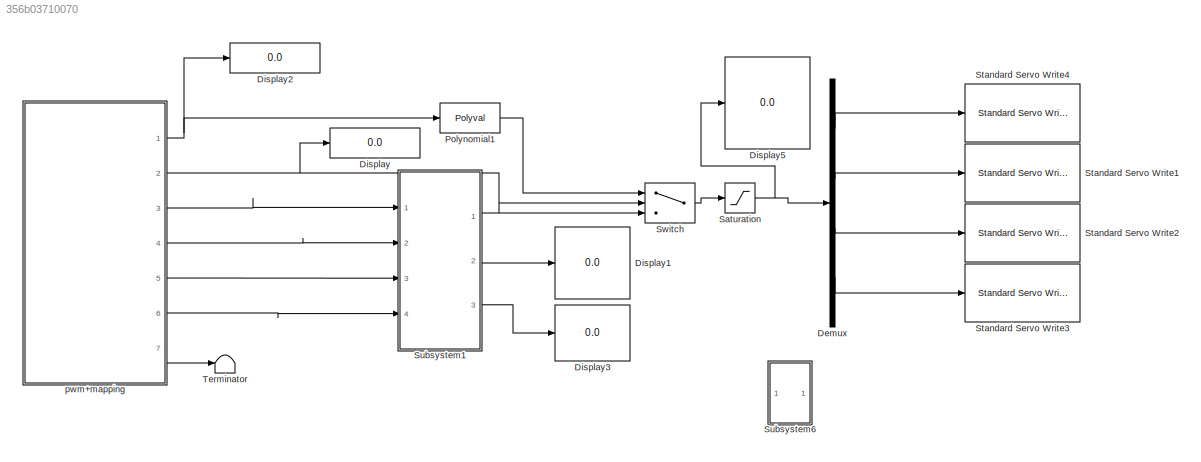
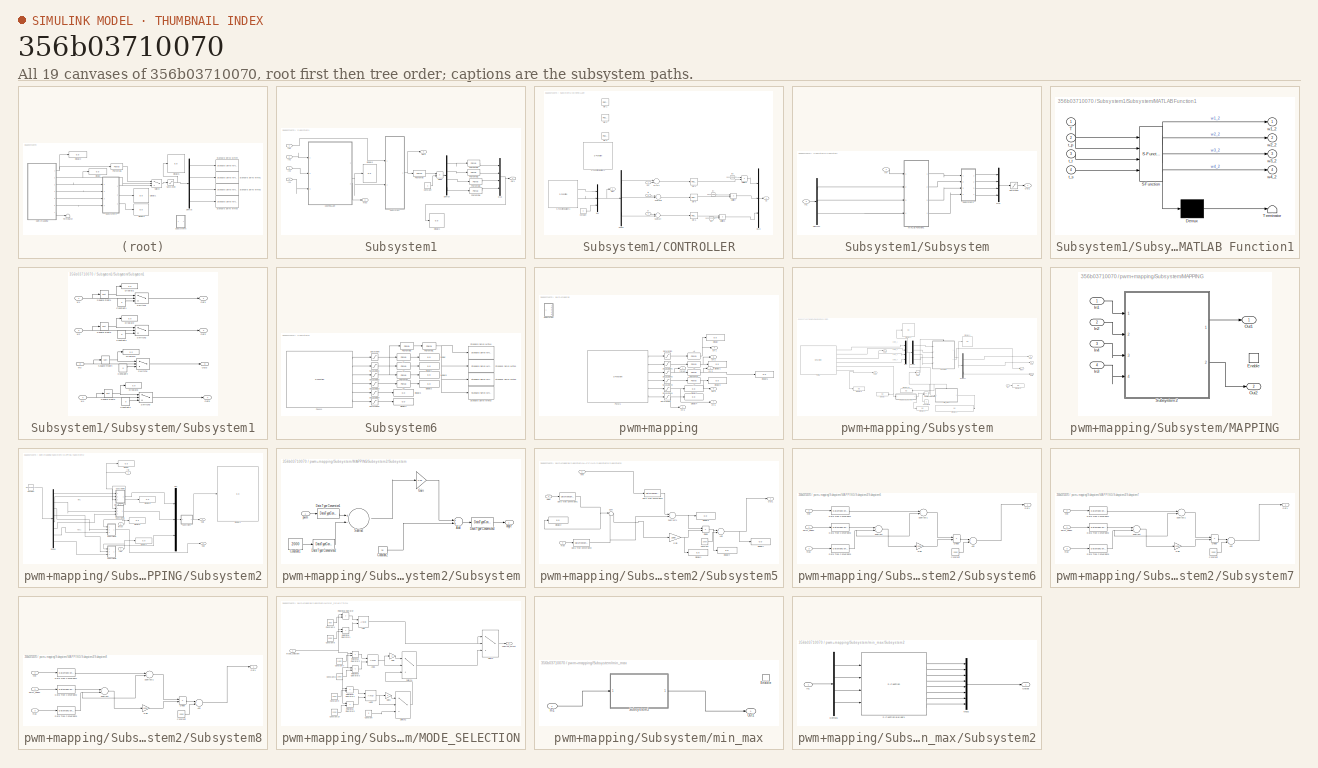
[diagram: thumbnail index - all 19 canvases of the model, root first then tree order]
MODEL slx_356b03710070
KIND model
CONFIG AbsTol = auto
CONFIG EnableMultiTasking = on
CONFIG FixedStep = auto
CONFIG MaxStep = auto
CONFIG MinStep = auto
CONFIG RelTol = 1e-3
CONFIG SampleTimeConstraint = Unconstrained
CONFIG Solver = FixedStepAuto
CONFIG SolverName = FixedStepAuto
CONFIG StartTime = 0.0
CONFIG StopTime = inf
BLOCK [Demux] Demux
  DisplayOption = bar
  Ports = [1, 4]
BLOCK [Display] Display
  Decimation = 1
  Ports = [1]
BLOCK [Display] Display1
  Decimation = 1
  Ports = [1]
BLOCK [Display] Display2
  Decimation = 1
  Ports = [1]
BLOCK [Display] Display3
  Decimation = 1
  Ports = [1]
BLOCK [Display] Display5
  Decimation = 1
  Ports = [1]
BLOCK [Polyval] Polynomial1
  Coefs = [0.097\n  -52]
BLOCK [Saturate] Saturation
  InputPortMap = u0
  LowerLimit = 45
  Ports = [1, 1]
  UpperLimit = 142
BLOCK [Reference] Standard Servo Write1  REF=arduinolib/Standard Servo Write
  Ports = [1]
  SourceBlock = arduinolib/Standard Servo Write
  SourceProductBaseCode = ARDUINO
  SourceProductName = Simulink Support Package for Arduino Hardware
  SourceType = Arduino Standard Servo Write
BLOCK [Reference] Standard Servo Write2  REF=arduinolib/Standard Servo Write
  Ports = [1]
  SourceBlock = arduinolib/Standard Servo Write
  SourceProductBaseCode = ARDUINO
  SourceProductName = Simulink Support Package for Arduino Hardware
  SourceType = Arduino Standard Servo Write
BLOCK [Reference] Standard Servo Write3  REF=arduinolib/Standard Servo Write
  Ports = [1]
  SourceBlock = arduinolib/Standard Servo Write
  SourceProductBaseCode = ARDUINO
  SourceProductName = Simulink Support Package for Arduino Hardware
  SourceType = Arduino Standard Servo Write
BLOCK [Reference] Standard Servo Write4  REF=arduinolib/Standard Servo Write
  Ports = [1]
  SourceBlock = arduinolib/Standard Servo Write
  SourceProductBaseCode = ARDUINO
  SourceProductName = Simulink Support Package for Arduino Hardware
  SourceType = Arduino Standard Servo Write
BLOCK [SubSystem] Subsystem1
  Ports = [4, 3]
  RequestExecContextInheritance = off
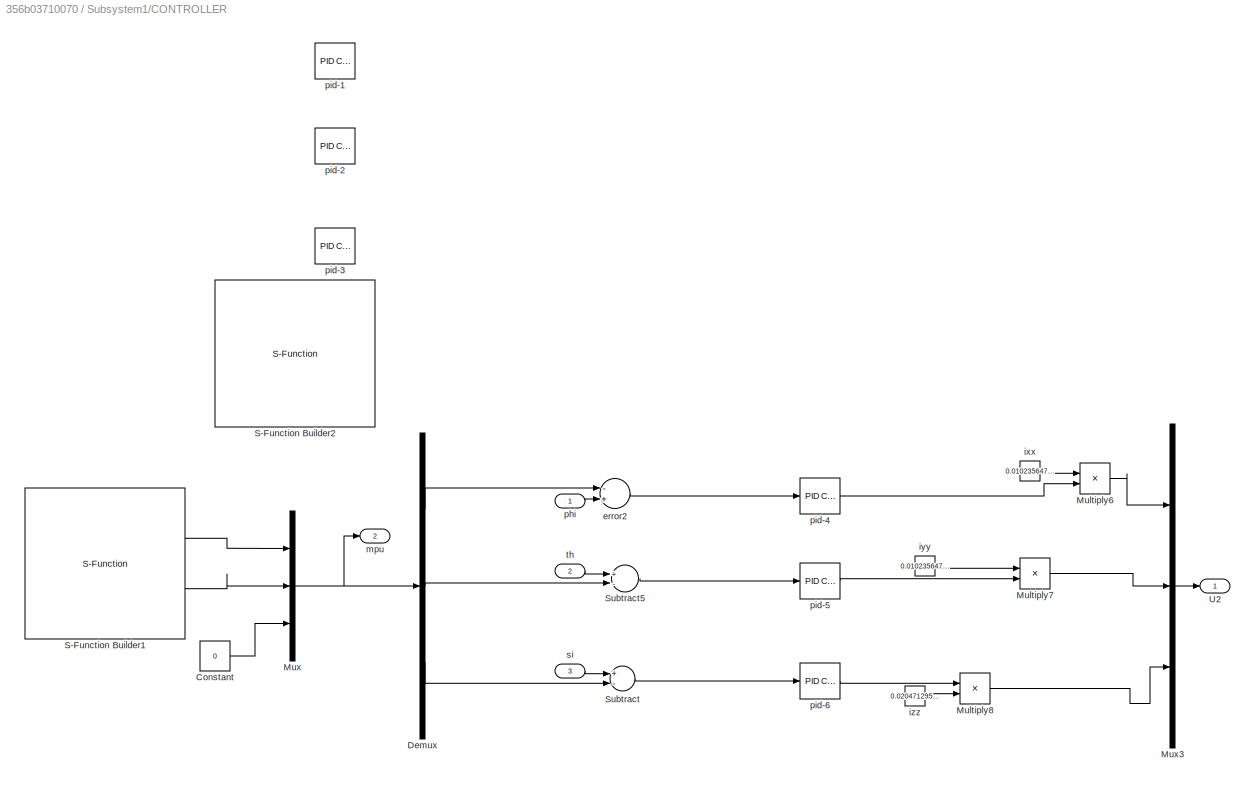
BLOCK [SubSystem] Subsystem1/CONTROLLER
  Ports = [3, 2]
  RequestExecContextInheritance = off
BLOCK [Constant] Subsystem1/CONTROLLER/Constant
  Value = 0
BLOCK [Demux] Subsystem1/CONTROLLER/Demux
  DisplayOption = bar
  Outputs = 3
  Ports = [1, 3]
BLOCK [Product] Subsystem1/CONTROLLER/Multiply6
  InputSameDT = off
  OutDataTypeStr = double
  Ports = [2, 1]
  RndMeth = Floor
  SaturateOnIntegerOverflow = off
BLOCK [Product] Subsystem1/CONTROLLER/Multiply7
  InputSameDT = off
  OutDataTypeStr = double
  Ports = [2, 1]
  RndMeth = Floor
  SaturateOnIntegerOverflow = off
BLOCK [Product] Subsystem1/CONTROLLER/Multiply8
  InputSameDT = off
  OutDataTypeStr = double
  Ports = [2, 1]
  RndMeth = Floor
  SaturateOnIntegerOverflow = off
BLOCK [Mux] Subsystem1/CONTROLLER/Mux
  DisplayOption = bar
  Inputs = 3
  Ports = [3, 1]
BLOCK [Mux] Subsystem1/CONTROLLER/Mux3
  DisplayOption = bar
  Inputs = 3
  Ports = [3, 1]
BLOCK [S-Function] Subsystem1/CONTROLLER/S-Function Builder1
  CopyFcn = set_param(gcbh,'LinkStatus','none')
  EnableBusSupport = off
  FunctionName = mpu_raw
  InitFcn = try, set_param(gcb,'FunctionName','mpu_raw'), end
  OpenFcn = sfunctionwizard(gcbh)
  Ports = [0, 2]
  PreSaveFcn = try, set_param(gcb,'FunctionName','mpu_raw'), end
  SFcnIsStateOwnerBlock = off
  SFunctionDeploymentMode = off
  SFunctionModules = mpu_raw_wrapper
BLOCK [S-Function] Subsystem1/CONTROLLER/S-Function Builder2
  Commented = on
  CopyFcn = set_param(gcbh,'LinkStatus','none')
  EnableBusSupport = off
  FunctionName = mpu_raw
  InitFcn = try, set_param(gcb,'FunctionName','mpu_raw'), end
  OpenFcn = sfunctionwizard(gcbh)
  Ports = [0, 2]
  PreSaveFcn = try, set_param(gcb,'FunctionName','mpu_raw'), end
  SFcnIsStateOwnerBlock = off
  SFunctionDeploymentMode = off
  SFunctionModules = mpu_raw_wrapper
BLOCK [Sum] Subsystem1/CONTROLLER/Subtract
  InputSameDT = off
  Inputs = +-
  OutDataTypeStr = Inherit: Inherit via internal rule
  Ports = [2, 1]
  SaturateOnIntegerOverflow = off
BLOCK [Sum] Subsystem1/CONTROLLER/Subtract5
  InputSameDT = off
  Inputs = +-
  OutDataTypeStr = Inherit: Inherit via internal rule
  Ports = [2, 1]
  SaturateOnIntegerOverflow = off
BLOCK [Outport] Subsystem1/CONTROLLER/U2
  IconDisplay = Port number
BLOCK [Sum] Subsystem1/CONTROLLER/error2
  InputSameDT = off
  Inputs = -+
  OutDataTypeStr = Inherit: Inherit via internal rule
  Ports = [2, 1]
  SaturateOnIntegerOverflow = off
BLOCK [Constant] Subsystem1/CONTROLLER/ixx
  Value = 0.01023564759
BLOCK [Constant] Subsystem1/CONTROLLER/iyy
  Value = 0.01023564759
BLOCK [Constant] Subsystem1/CONTROLLER/izz
  Value = 0.02047129518
BLOCK [Outport] Subsystem1/CONTROLLER/mpu
  IconDisplay = Port number
  Port = 2
BLOCK [Inport] Subsystem1/CONTROLLER/phi
  IconDisplay = Port number
BLOCK [Reference] Subsystem1/CONTROLLER/pid-1  REF=simulink/Continuous/PID Controller
  Commented = on
  Ports = [1, 1]
  SourceBlock = simulink/Continuous/PID Controller
  SourceProductBaseCode = SL
  SourceProductName = Simulink
  SourceType = PID 1dof
BLOCK [Reference] Subsystem1/CONTROLLER/pid-2  REF=simulink/Continuous/PID Controller
  Commented = on
  Ports = [1, 1]
  SourceBlock = simulink/Continuous/PID Controller
  SourceProductBaseCode = SL
  SourceProductName = Simulink
  SourceType = PID 1dof
BLOCK [Reference] Subsystem1/CONTROLLER/pid-3  REF=simulink/Continuous/PID Controller
  Commented = on
  Ports = [1, 1]
  SourceBlock = simulink/Continuous/PID Controller
  SourceProductBaseCode = SL
  SourceProductName = Simulink
  SourceType = PID 1dof
BLOCK [Reference] Subsystem1/CONTROLLER/pid-4  REF=simulink/Continuous/PID Controller
  Ports = [1, 1]
  SourceBlock = simulink/Continuous/PID Controller
  SourceProductBaseCode = SL
  SourceProductName = Simulink
  SourceType = PID 1dof
BLOCK [Reference] Subsystem1/CONTROLLER/pid-5  REF=simulink/Continuous/PID Controller
  Ports = [1, 1]
  SourceBlock = simulink/Continuous/PID Controller
  SourceProductBaseCode = SL
  SourceProductName = Simulink
  SourceType = PID 1dof
BLOCK [Reference] Subsystem1/CONTROLLER/pid-6  REF=simulink/Continuous/PID Controller
  Ports = [1, 1]
  SourceBlock = simulink/Continuous/PID Controller
  SourceProductBaseCode = SL
  SourceProductName = Simulink
  SourceType = PID 1dof
BLOCK [Inport] Subsystem1/CONTROLLER/si
  IconDisplay = Port number
  Port = 3
BLOCK [Inport] Subsystem1/CONTROLLER/th
  IconDisplay = Port number
  Port = 2
BLOCK [Constant] Subsystem1/Constant
BLOCK [Demux] Subsystem1/Demux
  DisplayOption = bar
  Ports = [1, 4]
BLOCK [Display] Subsystem1/Display1
  Decimation = 1
  Ports = [1]
BLOCK [Display] Subsystem1/Display6
  Decimation = 1
  Ports = [1]
BLOCK [Product] Subsystem1/Divide
  InputSameDT = off
  Inputs = */
  OutDataTypeStr = Inherit: Inherit via internal rule
  Ports = [2, 1]
  RndMeth = Floor
  SaturateOnIntegerOverflow = off
BLOCK [Inport] Subsystem1/In1
  IconDisplay = Port number
BLOCK [Inport] Subsystem1/In2
  IconDisplay = Port number
  Port = 2
BLOCK [Inport] Subsystem1/In3
  IconDisplay = Port number
  Port = 3
BLOCK [Inport] Subsystem1/In4
  IconDisplay = Port number
  Port = 4
BLOCK [Mux] Subsystem1/Mux
  DisplayOption = bar
  Ports = [4, 1]
BLOCK [Outport] Subsystem1/Out1
  IconDisplay = Port number
BLOCK [Outport] Subsystem1/Out2
  IconDisplay = Port number
  Port = 2
BLOCK [Polyval] Subsystem1/Polynomial
  Coefs = [1.126e-05 0.05526 1005]
BLOCK [Polyval] Subsystem1/Polynomial1
  Coefs = [0.097\n  -52]
BLOCK [Polyval] Subsystem1/Polynomial2
  Coefs = [0.097\n  -52]
BLOCK [Polyval] Subsystem1/Polynomial3
  Coefs = [0.097\n  -52]
BLOCK [Polyval] Subsystem1/Polynomial4
  Coefs = [0.097\n  -52]
BLOCK [SubSystem] Subsystem1/Subsystem
  Ports = [2, 1]
  RequestExecContextInheritance = off
BLOCK [Demux] Subsystem1/Subsystem/Demux1
  DisplayOption = bar
  Outputs = 3
  Ports = [1, 3]
BLOCK [Inport] Subsystem1/Subsystem/In1
  IconDisplay = Port number
  Port = 2
BLOCK [Inport] Subsystem1/Subsystem/In7
  IconDisplay = Port number
BLOCK [SubSystem] Subsystem1/Subsystem/MATLAB Function1
  ErrorFcn = Stateflow.Translate.translate
  PermitHierarchicalResolution = ExplicitOnly
  Ports = [4, 4]
  RequestExecContextInheritance = off
  SFBlockType = MATLAB Function
  TreatAsAtomicUnit = on
BLOCK [Demux] Subsystem1/Subsystem/MATLAB Function1/ Demux 
  Outputs = 1
  Ports = [1, 1]
BLOCK [S-Function] Subsystem1/Subsystem/MATLAB Function1/ SFunction 
  EnableBusSupport = on
  FunctionName = sf_sfun
  PortCounts = [4 5]
  Ports = [4, 5]
  SFcnIsStateOwnerBlock = off
  SFunctionDeploymentMode = off
  Tag = Stateflow S-Function QC_Test2 2
BLOCK [Terminator] Subsystem1/Subsystem/MATLAB Function1/ Terminator 
BLOCK [Inport] Subsystem1/Subsystem/MATLAB Function1/T
  IconDisplay = Port number
BLOCK [Inport] Subsystem1/Subsystem/MATLAB Function1/t_p
  IconDisplay = Port number
  Port = 2
BLOCK [Inport] Subsystem1/Subsystem/MATLAB Function1/t_s
  IconDisplay = Port number
  Port = 4
BLOCK [Inport] Subsystem1/Subsystem/MATLAB Function1/t_t
  IconDisplay = Port number
  Port = 3
BLOCK [Outport] Subsystem1/Subsystem/MATLAB Function1/w1_2
  IconDisplay = Port number
BLOCK [Outport] Subsystem1/Subsystem/MATLAB Function1/w2_2
  IconDisplay = Port number
  Port = 2
BLOCK [Outport] Subsystem1/Subsystem/MATLAB Function1/w3_2
  IconDisplay = Port number
  Port = 3
BLOCK [Outport] Subsystem1/Subsystem/MATLAB Function1/w4_2
  IconDisplay = Port number
  Port = 4
BLOCK [Mux] Subsystem1/Subsystem/Mux
  DisplayOption = bar
  Ports = [4, 1]
BLOCK [Outport] Subsystem1/Subsystem/Out1
  IconDisplay = Port number
BLOCK [Saturate] Subsystem1/Subsystem/Saturation
  InputPortMap = u0
  LowerLimit = 0
  Ports = [1, 1]
  UpperLimit = 7300
BLOCK [SubSystem] Subsystem1/Subsystem/Subsystem1
  Ports = [4, 4]
  RequestExecContextInheritance = off
BLOCK [Constant] Subsystem1/Subsystem/Subsystem1/Constant1
  Value = 0
BLOCK [Constant] Subsystem1/Subsystem/Subsystem1/Constant2
  Value = 0
BLOCK [Constant] Subsystem1/Subsystem/Subsystem1/Constant3
  Value = 0
BLOCK [Constant] Subsystem1/Subsystem/Subsystem1/Constant4
  Value = 0
BLOCK [Display] Subsystem1/Subsystem/Subsystem1/Display1
  Decimation = 1
  Ports = [1]
BLOCK [Display] Subsystem1/Subsystem/Subsystem1/Display2
  Decimation = 1
  Ports = [1]
BLOCK [Display] Subsystem1/Subsystem/Subsystem1/Display3
  Decimation = 1
  Ports = [1]
BLOCK [Display] Subsystem1/Subsystem/Subsystem1/Display6
  Decimation = 1
  Ports = [1]
BLOCK [Outport] Subsystem1/Subsystem/Subsystem1/Out1
  IconDisplay = Port number
BLOCK [Outport] Subsystem1/Subsystem/Subsystem1/Out2
  IconDisplay = Port number
  Port = 2
BLOCK [Outport] Subsystem1/Subsystem/Subsystem1/Out3
  IconDisplay = Port number
  Port = 3
BLOCK [Outport] Subsystem1/Subsystem/Subsystem1/Out5
  IconDisplay = Port number
  Port = 4
BLOCK [Sqrt] Subsystem1/Subsystem/Subsystem1/Square Root1
BLOCK [Sqrt] Subsystem1/Subsystem/Subsystem1/Square Root2
BLOCK [Sqrt] Subsystem1/Subsystem/Subsystem1/Square Root3
BLOCK [Sqrt] Subsystem1/Subsystem/Subsystem1/Square Root4
BLOCK [Switch] Subsystem1/Subsystem/Subsystem1/Switch1
  Criteria = u2 > Threshold
  InputSameDT = off
  SaturateOnIntegerOverflow = off
BLOCK [Switch] Subsystem1/Subsystem/Subsystem1/Switch2
  Criteria = u2 > Threshold
  InputSameDT = off
  SaturateOnIntegerOverflow = off
BLOCK [Switch] Subsystem1/Subsystem/Subsystem1/Switch3
  Criteria = u2 > Threshold
  InputSameDT = off
  SaturateOnIntegerOverflow = off
BLOCK [Switch] Subsystem1/Subsystem/Subsystem1/Switch4
  Criteria = u2 > Threshold
  InputSameDT = off
  SaturateOnIntegerOverflow = off
BLOCK [Inport] Subsystem1/Subsystem/Subsystem1/w1
  IconDisplay = Port number
BLOCK [Inport] Subsystem1/Subsystem/Subsystem1/w2
  IconDisplay = Port number
  Port = 2
BLOCK [Inport] Subsystem1/Subsystem/Subsystem1/w3
  IconDisplay = Port number
  Port = 3
BLOCK [Inport] Subsystem1/Subsystem/Subsystem1/w4
  IconDisplay = Port number
  Port = 4
BLOCK [Outport] Subsystem1/mpu
  IconDisplay = Port number
  Port = 3
BLOCK [SubSystem] Subsystem6
  Commented = on
  Ports = []
  RequestExecContextInheritance = off
BLOCK [Polyval] Subsystem6/A1
  Coefs = [0.06  -90]
BLOCK [Polyval] Subsystem6/A2
  Coefs = [0.06  -90]
BLOCK [Polyval] Subsystem6/A3
  Coefs = [0.06  -90]
BLOCK [Display] Subsystem6/Display
  Decimation = 1
  Ports = [1]
BLOCK [Display] Subsystem6/Display1
  Decimation = 1
  Ports = [1]
BLOCK [Display] Subsystem6/Display2
  Decimation = 1
  Ports = [1]
BLOCK [Display] Subsystem6/Display3
  Decimation = 1
  Ports = [1]
BLOCK [Display] Subsystem6/Display4
  Decimation = 1
  Ports = [1]
BLOCK [Display] Subsystem6/Display5
  Decimation = 1
  Ports = [1]
BLOCK [S-Function] Subsystem6/PWM1
  CopyFcn = set_param(gcbh,'LinkStatus','none')
  EnableBusSupport = off
  FunctionName = THEpwm
  InitFcn = try, set_param(gcb,'FunctionName','THEpwm'), end
  OpenFcn = sfunctionwizard(gcbh)
  Ports = [0, 6]
  PreSaveFcn = try, set_param(gcb,'FunctionName','THEpwm'), end
  SFcnIsStateOwnerBlock = off
  SFunctionDeploymentMode = off
  SFunctionModules = THEpwm_wrapper
BLOCK [Polyval] Subsystem6/Polynomial
  Coefs = [0.02  -20]
BLOCK [Polyval] Subsystem6/Polynomial1
  Coefs = [0.097\n  -52]
BLOCK [Polyval] Subsystem6/Polynomial3
  Coefs = [1.126e-05 0.05526 1005]
BLOCK [Saturate] Subsystem6/Saturation
  InputPortMap = u0
  LowerLimit = 1000
  Ports = [1, 1]
  UpperLimit = 2000
BLOCK [Saturate] Subsystem6/Saturation1
  InputPortMap = u0
  LowerLimit = 1000
  Ports = [1, 1]
  UpperLimit = 2000
BLOCK [Saturate] Subsystem6/Saturation2
  InputPortMap = u0
  LowerLimit = 1000
  Ports = [1, 1]
  UpperLimit = 2000
BLOCK [Saturate] Subsystem6/Saturation3
  InputPortMap = u0
  LowerLimit = 1000
  Ports = [1, 1]
  UpperLimit = 2000
BLOCK [Saturate] Subsystem6/Saturation4
  InputPortMap = u0
  LowerLimit = 1000
  Ports = [1, 1]
  UpperLimit = 2000
BLOCK [Saturate] Subsystem6/Saturation5
  InputPortMap = u0
  LowerLimit = 1000
  Ports = [1, 1]
  UpperLimit = 2000
BLOCK [Reference] Subsystem6/Standard Servo Write1  REF=arduinolib/Standard Servo Write
  Ports = [1]
  SourceBlock = arduinolib/Standard Servo Write
  SourceProductBaseCode = ARDUINO
  SourceProductName = Simulink Support Package for Arduino Hardware
  SourceType = Arduino Standard Servo Write
BLOCK [Reference] Subsystem6/Standard Servo Write2  REF=arduinolib/Standard Servo Write
  Ports = [1]
  SourceBlock = arduinolib/Standard Servo Write
  SourceProductBaseCode = ARDUINO
  SourceProductName = Simulink Support Package for Arduino Hardware
  SourceType = Arduino Standard Servo Write
BLOCK [Reference] Subsystem6/Standard Servo Write3  REF=arduinolib/Standard Servo Write
  Ports = [1]
  SourceBlock = arduinolib/Standard Servo Write
  SourceProductBaseCode = ARDUINO
  SourceProductName = Simulink Support Package for Arduino Hardware
  SourceType = Arduino Standard Servo Write
BLOCK [Reference] Subsystem6/Standard Servo Write4  REF=arduinolib/Standard Servo Write
  Ports = [1]
  SourceBlock = arduinolib/Standard Servo Write
  SourceProductBaseCode = ARDUINO
  SourceProductName = Simulink Support Package for Arduino Hardware
  SourceType = Arduino Standard Servo Write
BLOCK [Switch] Switch
  Criteria = u2 > Threshold
  InputSameDT = off
  SaturateOnIntegerOverflow = off
  Threshold = 1500
BLOCK [Terminator] Terminator
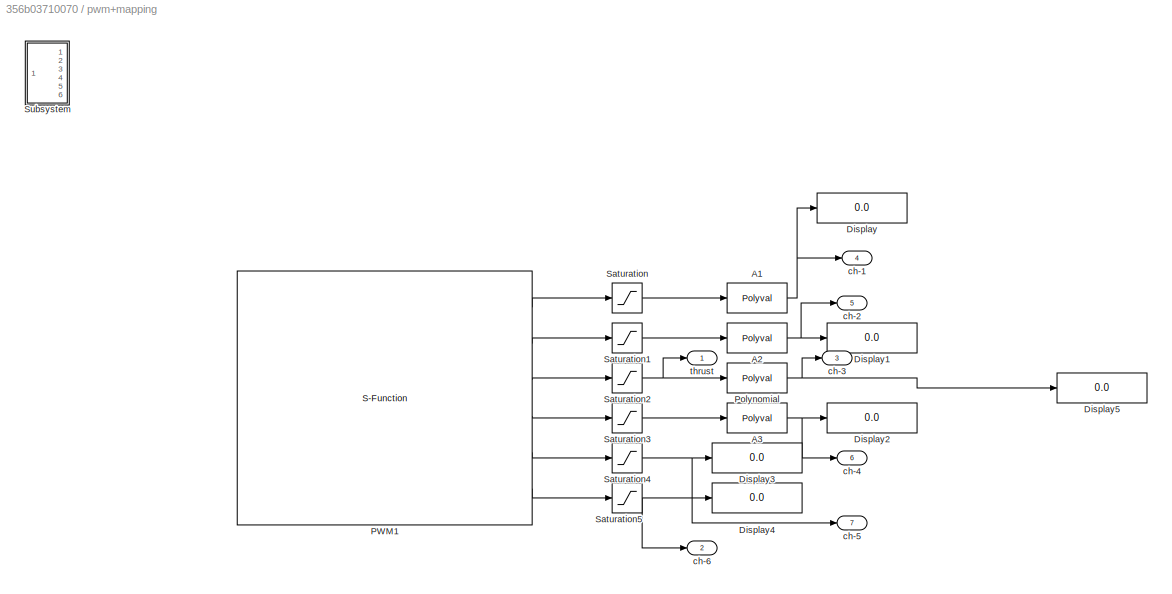
BLOCK [SubSystem] pwm+mapping
  Ports = [0, 7]
  RequestExecContextInheritance = off
BLOCK [Polyval] pwm+mapping/A1
  Coefs = [0.06  -90]
BLOCK [Polyval] pwm+mapping/A2
  Coefs = [0.06  -90]
BLOCK [Polyval] pwm+mapping/A3
  Coefs = [0.06  -90]
BLOCK [Display] pwm+mapping/Display
  Decimation = 1
  Ports = [1]
BLOCK [Display] pwm+mapping/Display1
  Decimation = 1
  Ports = [1]
BLOCK [Display] pwm+mapping/Display2
  Decimation = 1
  Ports = [1]
BLOCK [Display] pwm+mapping/Display3
  Decimation = 1
  Ports = [1]
BLOCK [Display] pwm+mapping/Display4
  Decimation = 1
  Ports = [1]
BLOCK [Display] pwm+mapping/Display5
  Decimation = 1
  Ports = [1]
BLOCK [S-Function] pwm+mapping/PWM1
  CopyFcn = set_param(gcbh,'LinkStatus','none')
  EnableBusSupport = off
  FunctionName = THEpwm
  InitFcn = try, set_param(gcb,'FunctionName','THEpwm'), end
  OpenFcn = sfunctionwizard(gcbh)
  Ports = [0, 6]
  PreSaveFcn = try, set_param(gcb,'FunctionName','THEpwm'), end
  SFcnIsStateOwnerBlock = off
  SFunctionDeploymentMode = off
  SFunctionModules = THEpwm_wrapper
BLOCK [Polyval] pwm+mapping/Polynomial
  Coefs = [0.02  -20]
BLOCK [Saturate] pwm+mapping/Saturation
  InputPortMap = u0
  LowerLimit = 1000
  Ports = [1, 1]
  UpperLimit = 2000
BLOCK [Saturate] pwm+mapping/Saturation1
  InputPortMap = u0
  LowerLimit = 1000
  Ports = [1, 1]
  UpperLimit = 2000
BLOCK [Saturate] pwm+mapping/Saturation2
  InputPortMap = u0
  LowerLimit = 1000
  Ports = [1, 1]
  UpperLimit = 2000
BLOCK [Saturate] pwm+mapping/Saturation3
  InputPortMap = u0
  LowerLimit = 1000
  Ports = [1, 1]
  UpperLimit = 2000
BLOCK [Saturate] pwm+mapping/Saturation4
  InputPortMap = u0
  LowerLimit = 1000
  Ports = [1, 1]
  UpperLimit = 2000
BLOCK [Saturate] pwm+mapping/Saturation5
  InputPortMap = u0
  LowerLimit = 1000
  Ports = [1, 1]
  UpperLimit = 2000
BLOCK [SubSystem] pwm+mapping/Subsystem
  Commented = on
  Ports = [1, 6]
  RequestExecContextInheritance = off
BLOCK [Constant] pwm+mapping/Subsystem/Constant6
  OutDataTypeStr = int16
  Value = 3
BLOCK [Demux] pwm+mapping/Subsystem/Demux
  DisplayOption = bar
  Ports = [1, 4]
BLOCK [Demux] pwm+mapping/Subsystem/Demux1
  DisplayOption = bar
  Outputs = 3
  Ports = [1, 3]
BLOCK [Display] pwm+mapping/Subsystem/Display
  Decimation = 1
  Ports = [1]
BLOCK [Display] pwm+mapping/Subsystem/Display1
  Decimation = 1
  Ports = [1]
BLOCK [Display] pwm+mapping/Subsystem/Display2
  Decimation = 1
  Ports = [1]
BLOCK [Display] pwm+mapping/Subsystem/Display20
  Decimation = 1
  Ports = [1]
BLOCK [Display] pwm+mapping/Subsystem/Display3
  Decimation = 1
  Ports = [1]
BLOCK [Display] pwm+mapping/Subsystem/Display4
  Decimation = 1
  Ports = [1]
BLOCK [Display] pwm+mapping/Subsystem/Display5
  Decimation = 1
  Ports = [1]
BLOCK [Display] pwm+mapping/Subsystem/Display6
  Decimation = 1
  Ports = [1]
BLOCK [Inport] pwm+mapping/Subsystem/In1
  IconDisplay = Port number
BLOCK [SubSystem] pwm+mapping/Subsystem/MAPPING
  Ports = [4, 2, 1]
  RequestExecContextInheritance = off
BLOCK [EnablePort] pwm+mapping/Subsystem/MAPPING/Enable
  Ports = []
BLOCK [Inport] pwm+mapping/Subsystem/MAPPING/In1
  IconDisplay = Port number
BLOCK [Inport] pwm+mapping/Subsystem/MAPPING/In2
  IconDisplay = Port number
  Port = 2
BLOCK [Inport] pwm+mapping/Subsystem/MAPPING/In3
  IconDisplay = Port number
  Port = 4
BLOCK [Inport] pwm+mapping/Subsystem/MAPPING/In4
  IconDisplay = Port number
  Port = 3
BLOCK [Outport] pwm+mapping/Subsystem/MAPPING/Out1
  IconDisplay = Port number
BLOCK [Outport] pwm+mapping/Subsystem/MAPPING/Out2
  IconDisplay = Port number
  Port = 2
BLOCK [SubSystem] pwm+mapping/Subsystem/MAPPING/Subsystem2
  Ports = [4, 2]
  RequestExecContextInheritance = off
BLOCK [Constant] pwm+mapping/Subsystem/MAPPING/Subsystem2/Constant
  Value = [1020 1023 1024 1025 2023 2024 2025 2026]
BLOCK [Demux] pwm+mapping/Subsystem/MAPPING/Subsystem2/Demux
  DisplayOption = bar
  Outputs = 8
  Ports = [1, 8]
BLOCK [Display] pwm+mapping/Subsystem/MAPPING/Subsystem2/Display
  Decimation = 1
  Ports = [1]
BLOCK [Display] pwm+mapping/Subsystem/MAPPING/Subsystem2/Display1
  Decimation = 1
  Ports = [1]
BLOCK [Display] pwm+mapping/Subsystem/MAPPING/Subsystem2/Display5
  Decimation = 1
  Ports = [1]
BLOCK [Display] pwm+mapping/Subsystem/MAPPING/Subsystem2/Display6
  Decimation = 1
  Ports = [1]
BLOCK [Display] pwm+mapping/Subsystem/MAPPING/Subsystem2/Display7
  Decimation = 1
  Ports = [1]
BLOCK [Mux] pwm+mapping/Subsystem/MAPPING/Subsystem2/Mux
  DisplayOption = bar
  Inputs = 3
  Ports = [3, 1]
BLOCK [Outport] pwm+mapping/Subsystem/MAPPING/Subsystem2/Out1
  IconDisplay = Port number
BLOCK [Outport] pwm+mapping/Subsystem/MAPPING/Subsystem2/Out2
  IconDisplay = Port number
  Port = 2
BLOCK [SubSystem] pwm+mapping/Subsystem/MAPPING/Subsystem2/Subsystem
  Ports = [1, 1]
  RequestExecContextInheritance = off
BLOCK [Sum] pwm+mapping/Subsystem/MAPPING/Subsystem2/Subsystem/Add
  InputSameDT = off
  OutDataTypeStr = Inherit: Inherit via internal rule
  Ports = [2, 1]
  SaturateOnIntegerOverflow = off
BLOCK [Constant] pwm+mapping/Subsystem/MAPPING/Subsystem2/Subsystem/Constant1
  Value = 2000
BLOCK [Constant] pwm+mapping/Subsystem/MAPPING/Subsystem2/Subsystem/Constant2
  OutDataTypeStr = single
  Value = 30
BLOCK [DataTypeConversion] pwm+mapping/Subsystem/MAPPING/Subsystem2/Subsystem/Data Type Conversion1
  OutDataTypeStr = single
  RndMeth = Floor
BLOCK [DataTypeConversion] pwm+mapping/Subsystem/MAPPING/Subsystem2/Subsystem/Data Type Conversion2
  OutDataTypeStr = single
  RndMeth = Floor
BLOCK [DataTypeConversion] pwm+mapping/Subsystem/MAPPING/Subsystem2/Subsystem/Data Type Conversion3
  OutDataTypeStr = single
  RndMeth = Floor
BLOCK [Gain] pwm+mapping/Subsystem/MAPPING/Subsystem2/Subsystem/Gain
  Gain = 0.06
  OutDataTypeStr = Inherit: Inherit via internal rule
  ParamDataTypeStr = Inherit: Inherit via internal rule
  SaturateOnIntegerOverflow = off
BLOCK [Sum] pwm+mapping/Subsystem/MAPPING/Subsystem2/Subsystem/Subtract
  InputSameDT = off
  Inputs = +-
  OutDataTypeStr = Inherit: Inherit via internal rule
  Ports = [2, 1]
  SaturateOnIntegerOverflow = off
BLOCK [Outport] pwm+mapping/Subsystem/MAPPING/Subsystem2/Subsystem/angle
  IconDisplay = Port number
BLOCK [Inport] pwm+mapping/Subsystem/MAPPING/Subsystem2/Subsystem/pwm
  IconDisplay = Port number
BLOCK [SubSystem] pwm+mapping/Subsystem/MAPPING/Subsystem2/Subsystem5
  Ports = [3, 1]
  RequestExecContextInheritance = off
BLOCK [Sum] pwm+mapping/Subsystem/MAPPING/Subsystem2/Subsystem5/Add
  InputSameDT = off
  OutDataTypeStr = Inherit: Inherit via internal rule
  Ports = [2, 1]
  SaturateOnIntegerOverflow = off
BLOCK [Constant] pwm+mapping/Subsystem/MAPPING/Subsystem2/Subsystem5/Constant
  OutDataTypeStr = single
  Value = 2000
BLOCK [DataTypeConversion] pwm+mapping/Subsystem/MAPPING/Subsystem2/Subsystem5/Data Type Conversion1
  OutDataTypeStr = single
  RndMeth = Floor
BLOCK [DataTypeConversion] pwm+mapping/Subsystem/MAPPING/Subsystem2/Subsystem5/Data Type Conversion2
  OutDataTypeStr = single
  RndMeth = Floor
BLOCK [DataTypeConversion] pwm+mapping/Subsystem/MAPPING/Subsystem2/Subsystem5/Data Type Conversion3
  OutDataTypeStr = single
  RndMeth = Floor
BLOCK [Display] pwm+mapping/Subsystem/MAPPING/Subsystem2/Subsystem5/Display1
  Decimation = 1
  Ports = [1]
BLOCK [Display] pwm+mapping/Subsystem/MAPPING/Subsystem2/Subsystem5/Display2
  Decimation = 1
  Ports = [1]
BLOCK [Display] pwm+mapping/Subsystem/MAPPING/Subsystem2/Subsystem5/Display3
  Decimation = 1
  Ports = [1]
BLOCK [Display] pwm+mapping/Subsystem/MAPPING/Subsystem2/Subsystem5/Display4
  Decimation = 1
  Ports = [1]
BLOCK [Display] pwm+mapping/Subsystem/MAPPING/Subsystem2/Subsystem5/Display7
  Decimation = 1
  Ports = [1]
BLOCK [Product] pwm+mapping/Subsystem/MAPPING/Subsystem2/Subsystem5/Divide
  InputSameDT = off
  Inputs = /*
  OutDataTypeStr = Inherit: Inherit via internal rule
  Ports = [2, 1]
  RndMeth = Floor
  SaturateOnIntegerOverflow = off
BLOCK [Gain] pwm+mapping/Subsystem/MAPPING/Subsystem2/Subsystem5/Gain
  Gain = 1000
  OutDataTypeStr = Inherit: Inherit via internal rule
  ParamDataTypeStr = Inherit: Inherit via internal rule
  SaturateOnIntegerOverflow = off
BLOCK [Outport] pwm+mapping/Subsystem/MAPPING/Subsystem2/Subsystem5/Out1
  IconDisplay = Port number
BLOCK [Sum] pwm+mapping/Subsystem/MAPPING/Subsystem2/Subsystem5/Subtract1
  InputSameDT = off
  Inputs = -+
  OutDataTypeStr = Inherit: Inherit via internal rule
  Ports = [2, 1]
  SaturateOnIntegerOverflow = off
BLOCK [Sum] pwm+mapping/Subsystem/MAPPING/Subsystem2/Subsystem5/Sum
  IconShape = round
  InputSameDT = off
  Inputs = |+-
  OutDataTypeStr = Inherit: Inherit via internal rule
  Ports = [2, 1]
  RndMeth = Nearest
  SaturateOnIntegerOverflow = off
BLOCK [Inport] pwm+mapping/Subsystem/MAPPING/Subsystem2/Subsystem5/max
  IconDisplay = Port number
  Port = 2
BLOCK [Inport] pwm+mapping/Subsystem/MAPPING/Subsystem2/Subsystem5/min 
  IconDisplay = Port number
BLOCK [Inport] pwm+mapping/Subsystem/MAPPING/Subsystem2/Subsystem5/pwm 
  IconDisplay = Port number
  Port = 3
BLOCK [SubSystem] pwm+mapping/Subsystem/MAPPING/Subsystem2/Subsystem6
  Ports = [3, 1]
  RequestExecContextInheritance = off
BLOCK [Sum] pwm+mapping/Subsystem/MAPPING/Subsystem2/Subsystem6/Add
  InputSameDT = off
  OutDataTypeStr = Inherit: Inherit via internal rule
  Ports = [2, 1]
  SaturateOnIntegerOverflow = off
BLOCK [Constant] pwm+mapping/Subsystem/MAPPING/Subsystem2/Subsystem6/Constant
  OutDataTypeStr = single
  Value = 2000
BLOCK [DataTypeConversion] pwm+mapping/Subsystem/MAPPING/Subsystem2/Subsystem6/Data Type Conversion1
  OutDataTypeStr = single
  RndMeth = Floor
BLOCK [DataTypeConversion] pwm+mapping/Subsystem/MAPPING/Subsystem2/Subsystem6/Data Type Conversion2
  OutDataTypeStr = single
  RndMeth = Floor
BLOCK [DataTypeConversion] pwm+mapping/Subsystem/MAPPING/Subsystem2/Subsystem6/Data Type Conversion3
  OutDataTypeStr = single
  RndMeth = Floor
BLOCK [Product] pwm+mapping/Subsystem/MAPPING/Subsystem2/Subsystem6/Divide
  InputSameDT = off
  Inputs = /*
  OutDataTypeStr = Inherit: Inherit via internal rule
  Ports = [2, 1]
  RndMeth = Floor
  SaturateOnIntegerOverflow = off
BLOCK [Gain] pwm+mapping/Subsystem/MAPPING/Subsystem2/Subsystem6/Gain
  Gain = 1000
  OutDataTypeStr = Inherit: Inherit via internal rule
  ParamDataTypeStr = Inherit: Inherit via internal rule
  SaturateOnIntegerOverflow = off
BLOCK [Outport] pwm+mapping/Subsystem/MAPPING/Subsystem2/Subsystem6/Out1
  IconDisplay = Port number
BLOCK [Sum] pwm+mapping/Subsystem/MAPPING/Subsystem2/Subsystem6/Subtract
  InputSameDT = off
  Inputs = +-
  OutDataTypeStr = Inherit: Inherit via internal rule
  Ports = [2, 1]
  SaturateOnIntegerOverflow = off
BLOCK [Sum] pwm+mapping/Subsystem/MAPPING/Subsystem2/Subsystem6/Subtract1
  InputSameDT = off
  Inputs = -+
  OutDataTypeStr = Inherit: Inherit via internal rule
  Ports = [2, 1]
  SaturateOnIntegerOverflow = off
BLOCK [Inport] pwm+mapping/Subsystem/MAPPING/Subsystem2/Subsystem6/max
  IconDisplay = Port number
  Port = 3
BLOCK [Inport] pwm+mapping/Subsystem/MAPPING/Subsystem2/Subsystem6/min
  IconDisplay = Port number
  Port = 2
BLOCK [Inport] pwm+mapping/Subsystem/MAPPING/Subsystem2/Subsystem6/pwm_value1
  IconDisplay = Port number
BLOCK [SubSystem] pwm+mapping/Subsystem/MAPPING/Subsystem2/Subsystem7
  Ports = [3, 1]
  RequestExecContextInheritance = off
BLOCK [Sum] pwm+mapping/Subsystem/MAPPING/Subsystem2/Subsystem7/Add
  InputSameDT = off
  OutDataTypeStr = Inherit: Inherit via internal rule
  Ports = [2, 1]
  SaturateOnIntegerOverflow = off
BLOCK [Constant] pwm+mapping/Subsystem/MAPPING/Subsystem2/Subsystem7/Constant
  OutDataTypeStr = single
  Value = 2000
BLOCK [DataTypeConversion] pwm+mapping/Subsystem/MAPPING/Subsystem2/Subsystem7/Data Type Conversion1
  OutDataTypeStr = single
  RndMeth = Floor
BLOCK [DataTypeConversion] pwm+mapping/Subsystem/MAPPING/Subsystem2/Subsystem7/Data Type Conversion2
  OutDataTypeStr = single
  RndMeth = Floor
BLOCK [DataTypeConversion] pwm+mapping/Subsystem/MAPPING/Subsystem2/Subsystem7/Data Type Conversion3
  OutDataTypeStr = single
  RndMeth = Floor
BLOCK [Product] pwm+mapping/Subsystem/MAPPING/Subsystem2/Subsystem7/Divide
  InputSameDT = off
  Inputs = /*
  OutDataTypeStr = Inherit: Inherit via internal rule
  Ports = [2, 1]
  RndMeth = Floor
  SaturateOnIntegerOverflow = off
BLOCK [Gain] pwm+mapping/Subsystem/MAPPING/Subsystem2/Subsystem7/Gain
  Gain = 1000
  OutDataTypeStr = Inherit: Inherit via internal rule
  ParamDataTypeStr = Inherit: Inherit via internal rule
  SaturateOnIntegerOverflow = off
BLOCK [Outport] pwm+mapping/Subsystem/MAPPING/Subsystem2/Subsystem7/Out1
  IconDisplay = Port number
BLOCK [Sum] pwm+mapping/Subsystem/MAPPING/Subsystem2/Subsystem7/Subtract
  InputSameDT = off
  Inputs = +-
  OutDataTypeStr = Inherit: Inherit via internal rule
  Ports = [2, 1]
  SaturateOnIntegerOverflow = off
BLOCK [Sum] pwm+mapping/Subsystem/MAPPING/Subsystem2/Subsystem7/Subtract1
  InputSameDT = off
  Inputs = -+
  OutDataTypeStr = Inherit: Inherit via internal rule
  Ports = [2, 1]
  SaturateOnIntegerOverflow = off
BLOCK [Inport] pwm+mapping/Subsystem/MAPPING/Subsystem2/Subsystem7/max
  IconDisplay = Port number
  Port = 3
BLOCK [Inport] pwm+mapping/Subsystem/MAPPING/Subsystem2/Subsystem7/min
  IconDisplay = Port number
  Port = 2
BLOCK [Inport] pwm+mapping/Subsystem/MAPPING/Subsystem2/Subsystem7/pwm_value1
  IconDisplay = Port number
BLOCK [SubSystem] pwm+mapping/Subsystem/MAPPING/Subsystem2/Subsystem8
  Ports = [3, 1]
  RequestExecContextInheritance = off
BLOCK [Sum] pwm+mapping/Subsystem/MAPPING/Subsystem2/Subsystem8/Add
  InputSameDT = off
  OutDataTypeStr = Inherit: Inherit via internal rule
  Ports = [2, 1]
  SaturateOnIntegerOverflow = off
BLOCK [Constant] pwm+mapping/Subsystem/MAPPING/Subsystem2/Subsystem8/Constant
  OutDataTypeStr = single
  Value = 2000
BLOCK [DataTypeConversion] pwm+mapping/Subsystem/MAPPING/Subsystem2/Subsystem8/Data Type Conversion1
  OutDataTypeStr = single
  RndMeth = Floor
BLOCK [DataTypeConversion] pwm+mapping/Subsystem/MAPPING/Subsystem2/Subsystem8/Data Type Conversion2
  OutDataTypeStr = single
  RndMeth = Floor
BLOCK [DataTypeConversion] pwm+mapping/Subsystem/MAPPING/Subsystem2/Subsystem8/Data Type Conversion3
  OutDataTypeStr = single
  RndMeth = Floor
BLOCK [Product] pwm+mapping/Subsystem/MAPPING/Subsystem2/Subsystem8/Divide
  InputSameDT = off
  Inputs = /*
  OutDataTypeStr = Inherit: Inherit via internal rule
  Ports = [2, 1]
  RndMeth = Floor
  SaturateOnIntegerOverflow = off
BLOCK [Gain] pwm+mapping/Subsystem/MAPPING/Subsystem2/Subsystem8/Gain
  Gain = 1000
  OutDataTypeStr = Inherit: Inherit via internal rule
  ParamDataTypeStr = Inherit: Inherit via internal rule
  SaturateOnIntegerOverflow = off
BLOCK [Outport] pwm+mapping/Subsystem/MAPPING/Subsystem2/Subsystem8/Out1
  IconDisplay = Port number
BLOCK [Sum] pwm+mapping/Subsystem/MAPPING/Subsystem2/Subsystem8/Subtract
  InputSameDT = off
  Inputs = +-
  OutDataTypeStr = Inherit: Inherit via internal rule
  Ports = [2, 1]
  SaturateOnIntegerOverflow = off
BLOCK [Sum] pwm+mapping/Subsystem/MAPPING/Subsystem2/Subsystem8/Subtract1
  InputSameDT = off
  Inputs = -+
  OutDataTypeStr = Inherit: Inherit via internal rule
  Ports = [2, 1]
  SaturateOnIntegerOverflow = off
BLOCK [Inport] pwm+mapping/Subsystem/MAPPING/Subsystem2/Subsystem8/max
  IconDisplay = Port number
  Port = 3
BLOCK [Inport] pwm+mapping/Subsystem/MAPPING/Subsystem2/Subsystem8/min
  IconDisplay = Port number
  Port = 2
BLOCK [Inport] pwm+mapping/Subsystem/MAPPING/Subsystem2/Subsystem8/pwm_value1
  IconDisplay = Port number
BLOCK [Inport] pwm+mapping/Subsystem/MAPPING/Subsystem2/pitch
  IconDisplay = Port number
  Port = 2
BLOCK [Inport] pwm+mapping/Subsystem/MAPPING/Subsystem2/roll
  IconDisplay = Port number
BLOCK [Inport] pwm+mapping/Subsystem/MAPPING/Subsystem2/thrust
  IconDisplay = Port number
  Port = 3
BLOCK [Inport] pwm+mapping/Subsystem/MAPPING/Subsystem2/yaw
  IconDisplay = Port number
  Port = 4
BLOCK [SubSystem] pwm+mapping/Subsystem/MODE_SELECTION
  Ports = [1, 1]
  RequestExecContextInheritance = off
BLOCK [Logic] pwm+mapping/Subsystem/MODE_SELECTION/AND
  AllPortsSameDT = off
  IconShape = distinctive
  OutDataTypeStr = boolean
  Ports = [2, 1]
BLOCK [Logic] pwm+mapping/Subsystem/MODE_SELECTION/AND1
  AllPortsSameDT = off
  IconShape = distinctive
  OutDataTypeStr = boolean
  Ports = [2, 1]
BLOCK [Logic] pwm+mapping/Subsystem/MODE_SELECTION/AND2
  AllPortsSameDT = off
  IconShape = distinctive
  OutDataTypeStr = boolean
  Ports = [2, 1]
BLOCK [Constant] pwm+mapping/Subsystem/MODE_SELECTION/Constant
  OutDataTypeStr = single
  Value = 0
BLOCK [Constant] pwm+mapping/Subsystem/MODE_SELECTION/Constant10
  OutDataTypeStr = single
  Value = 2200
BLOCK [Constant] pwm+mapping/Subsystem/MODE_SELECTION/Constant4
  OutDataTypeStr = single
  Value = 950
BLOCK [Constant] pwm+mapping/Subsystem/MODE_SELECTION/Constant6
  OutDataTypeStr = single
  Value = 1050
BLOCK [Constant] pwm+mapping/Subsystem/MODE_SELECTION/Constant7
  OutDataTypeStr = single
  Value = 1450
BLOCK [Constant] pwm+mapping/Subsystem/MODE_SELECTION/Constant8
  OutDataTypeStr = single
  Value = 1550
BLOCK [Constant] pwm+mapping/Subsystem/MODE_SELECTION/Constant9
  OutDataTypeStr = single
  Value = 1800
BLOCK [Gain] pwm+mapping/Subsystem/MODE_SELECTION/Gain
  Gain = 2
  OutDataTypeStr = Inherit: Inherit via internal rule
  ParamDataTypeStr = Inherit: Inherit via internal rule
  SaturateOnIntegerOverflow = off
BLOCK [Gain] pwm+mapping/Subsystem/MODE_SELECTION/Gain1
  Gain = 3
  OutDataTypeStr = Inherit: Inherit via internal rule
  ParamDataTypeStr = Inherit: Inherit via internal rule
  SaturateOnIntegerOverflow = off
BLOCK [RelationalOperator] pwm+mapping/Subsystem/MODE_SELECTION/Relational Operator
  InputSameDT = off
  Operator = >
  OutDataTypeStr = boolean
  Ports = [2, 1]
  RndMeth = Simplest
BLOCK [RelationalOperator] pwm+mapping/Subsystem/MODE_SELECTION/Relational Operator1
  InputSameDT = off
  Operator = <
  OutDataTypeStr = boolean
  Ports = [2, 1]
  RndMeth = Simplest
BLOCK [RelationalOperator] pwm+mapping/Subsystem/MODE_SELECTION/Relational Operator2
  InputSameDT = off
  Operator = >
  OutDataTypeStr = boolean
  Ports = [2, 1]
  RndMeth = Simplest
BLOCK [RelationalOperator] pwm+mapping/Subsystem/MODE_SELECTION/Relational Operator3
  InputSameDT = off
  Operator = <
  OutDataTypeStr = boolean
  Ports = [2, 1]
  RndMeth = Simplest
BLOCK [RelationalOperator] pwm+mapping/Subsystem/MODE_SELECTION/Relational Operator4
  InputSameDT = off
  Operator = >
  OutDataTypeStr = boolean
  Ports = [2, 1]
  RndMeth = Simplest
BLOCK [RelationalOperator] pwm+mapping/Subsystem/MODE_SELECTION/Relational Operator5
  InputSameDT = off
  Operator = <
  OutDataTypeStr = boolean
  Ports = [2, 1]
  RndMeth = Simplest
BLOCK [Switch] pwm+mapping/Subsystem/MODE_SELECTION/Switch
  Criteria = u2 ~= 0
  InputSameDT = off
  SaturateOnIntegerOverflow = off
BLOCK [Switch] pwm+mapping/Subsystem/MODE_SELECTION/Switch1
  Criteria = u2 ~= 0
  InputSameDT = off
  SaturateOnIntegerOverflow = off
BLOCK [Switch] pwm+mapping/Subsystem/MODE_SELECTION/Switch2
  Criteria = u2 ~= 0
  InputSameDT = off
  SaturateOnIntegerOverflow = off
BLOCK [Inport] pwm+mapping/Subsystem/MODE_SELECTION/mode_selection
  IconDisplay = Port number
BLOCK [Outport] pwm+mapping/Subsystem/MODE_SELECTION/selected_output
  IconDisplay = Port number
BLOCK [Mux] pwm+mapping/Subsystem/Mux
  DisplayOption = bar
  Ports = [4, 1]
BLOCK [Logic] pwm+mapping/Subsystem/NOT
  AllPortsSameDT = off
  IconShape = distinctive
  Operator = NOT
  OutDataTypeStr = boolean
  Ports = [1, 1]
BLOCK [Outport] pwm+mapping/Subsystem/Out2
  IconDisplay = Port number
  Port = 2
BLOCK [Outport] pwm+mapping/Subsystem/Out3
  IconDisplay = Port number
  Port = 3
BLOCK [Outport] pwm+mapping/Subsystem/Out6
  IconDisplay = Port number
  Port = 6
BLOCK [S-Function] pwm+mapping/Subsystem/PWM1
  CopyFcn = set_param(gcbh,'LinkStatus','none')
  EnableBusSupport = off
  FunctionName = THEpwm
  InitFcn = try, set_param(gcb,'FunctionName','THEpwm'), end
  OpenFcn = sfunctionwizard(gcbh)
  Ports = [0, 6]
  PreSaveFcn = try, set_param(gcb,'FunctionName','THEpwm'), end
  SFcnIsStateOwnerBlock = off
  SFunctionDeploymentMode = off
  SFunctionModules = THEpwm_wrapper
BLOCK [RelationalOperator] pwm+mapping/Subsystem/Relational Operator
  InputSameDT = off
  Operator = ==
  OutDataTypeStr = boolean
  Ports = [2, 1]
  RndMeth = Simplest
BLOCK [Outport] pwm+mapping/Subsystem/ch3
  IconDisplay = Port number
BLOCK [Outport] pwm+mapping/Subsystem/ch6 
  IconDisplay = Port number
  Port = 5
BLOCK [SubSystem] pwm+mapping/Subsystem/min_max
  Ports = [1, 1, 1]
  RequestExecContextInheritance = off
BLOCK [EnablePort] pwm+mapping/Subsystem/min_max/Enable
  Ports = []
BLOCK [Inport] pwm+mapping/Subsystem/min_max/In1
  IconDisplay = Port number
BLOCK [Outport] pwm+mapping/Subsystem/min_max/Out1
  IconDisplay = Port number
BLOCK [SubSystem] pwm+mapping/Subsystem/min_max/Subsystem2
  Ports = [1, 1]
  RequestExecContextInheritance = off
BLOCK [Demux] pwm+mapping/Subsystem/min_max/Subsystem2/Demux1
  DisplayOption = bar
  Ports = [1, 4]
BLOCK [Inport] pwm+mapping/Subsystem/min_max/Subsystem2/In1
  IconDisplay = Port number
BLOCK [Mux] pwm+mapping/Subsystem/min_max/Subsystem2/Mux2
  DisplayOption = bar
  Inputs = 8
  Ports = [8, 1]
BLOCK [Outport] pwm+mapping/Subsystem/min_max/Subsystem2/Output
  IconDisplay = Port number
BLOCK [S-Function] pwm+mapping/Subsystem/min_max/Subsystem2/S-Function Builder1
  CopyFcn = set_param(gcbh,'LinkStatus','none')
  EnableBusSupport = off
  FunctionName = min_max1
  InitFcn = try, set_param(gcb,'FunctionName','min_max1'), end
  OpenFcn = sfunctionwizard(gcbh)
  Ports = [4, 8]
  PreSaveFcn = try, set_param(gcb,'FunctionName','min_max1'), end
  SFcnIsStateOwnerBlock = off
  SFunctionDeploymentMode = off
  SFunctionModules = min_max1_wrapper
BLOCK [Outport] pwm+mapping/Subsystem/thrust
  IconDisplay = Port number
  Port = 4
BLOCK [Outport] pwm+mapping/ch-1
  IconDisplay = Port number
  Port = 4
BLOCK [Outport] pwm+mapping/ch-2
  IconDisplay = Port number
  Port = 5
BLOCK [Outport] pwm+mapping/ch-3
  IconDisplay = Port number
  Port = 3
BLOCK [Outport] pwm+mapping/ch-4
  IconDisplay = Port number
  Port = 6
BLOCK [Outport] pwm+mapping/ch-5
  IconDisplay = Port number
  Port = 7
BLOCK [Outport] pwm+mapping/ch-6
  IconDisplay = Port number
  Port = 2
BLOCK [Outport] pwm+mapping/thrust 
  IconDisplay = Port number
ANNOTATION pwm+mapping/Subsystem: pwm_1
ANNOTATION pwm+mapping/Subsystem: pwm_2
ANNOTATION pwm+mapping/Subsystem: pwm_3
ANNOTATION pwm+mapping/Subsystem: pwm_4
ANNOTATION pwm+mapping/Subsystem/MAPPING/Subsystem2: max1
ANNOTATION pwm+mapping/Subsystem/MAPPING/Subsystem2: min1
LINE Demux:1 -> Standard Servo Write4:1
LINE Demux:2 -> Standard Servo Write1:1
LINE Demux:3 -> Standard Servo Write2:1
LINE Demux:4 -> Standard Servo Write3:1
LINE Polynomial1:1 -> Switch:1
NET Saturation:1 -> Demux:1, Display5:1
LINE Subsystem1/CONTROLLER/Constant:1 -> Subsystem1/CONTROLLER/Mux:3
LINE Subsystem1/CONTROLLER/Demux:1 -> Subsystem1/CONTROLLER/error2:1
LINE Subsystem1/CONTROLLER/Demux:2 -> Subsystem1/CONTROLLER/Subtract5:2
LINE Subsystem1/CONTROLLER/Demux:3 -> Subsystem1/CONTROLLER/Subtract:2
LINE Subsystem1/CONTROLLER/Multiply6:1 -> Subsystem1/CONTROLLER/Mux3:1
LINE Subsystem1/CONTROLLER/Multiply7:1 -> Subsystem1/CONTROLLER/Mux3:2
LINE Subsystem1/CONTROLLER/Multiply8:1 -> Subsystem1/CONTROLLER/Mux3:3
LINE Subsystem1/CONTROLLER/Mux3:1 -> Subsystem1/CONTROLLER/U2:1
NET Subsystem1/CONTROLLER/Mux:1 -> Subsystem1/CONTROLLER/Demux:1, Subsystem1/CONTROLLER/mpu:1
LINE Subsystem1/CONTROLLER/S-Function Builder1:1 -> Subsystem1/CONTROLLER/Mux:1
LINE Subsystem1/CONTROLLER/S-Function Builder1:2 -> Subsystem1/CONTROLLER/Mux:2
LINE Subsystem1/CONTROLLER/Subtract5:1 -> Subsystem1/CONTROLLER/pid-5:1
LINE Subsystem1/CONTROLLER/Subtract:1 -> Subsystem1/CONTROLLER/pid-6:1
LINE Subsystem1/CONTROLLER/error2:1 -> Subsystem1/CONTROLLER/pid-4:1
LINE Subsystem1/CONTROLLER/ixx:1 -> Subsystem1/CONTROLLER/Multiply6:1
LINE Subsystem1/CONTROLLER/iyy:1 -> Subsystem1/CONTROLLER/Multiply7:1
LINE Subsystem1/CONTROLLER/izz:1 -> Subsystem1/CONTROLLER/Multiply8:2
LINE Subsystem1/CONTROLLER/phi:1 -> Subsystem1/CONTROLLER/error2:2
LINE Subsystem1/CONTROLLER/pid-4:1 -> Subsystem1/CONTROLLER/Multiply6:2
LINE Subsystem1/CONTROLLER/pid-5:1 -> Subsystem1/CONTROLLER/Multiply7:2
LINE Subsystem1/CONTROLLER/pid-6:1 -> Subsystem1/CONTROLLER/Multiply8:1
LINE Subsystem1/CONTROLLER/si:1 -> Subsystem1/CONTROLLER/Subtract:1
LINE Subsystem1/CONTROLLER/th:1 -> Subsystem1/CONTROLLER/Subtract5:1
NET Subsystem1/CONTROLLER:1 -> Subsystem1/Display6:1, Subsystem1/Subsystem:2
LINE Subsystem1/CONTROLLER:2 -> Subsystem1/mpu:1
LINE Subsystem1/Constant:1 -> Subsystem1/Divide:2
LINE Subsystem1/Demux:1 -> Subsystem1/Polynomial1:1
LINE Subsystem1/Demux:2 -> Subsystem1/Polynomial2:1
LINE Subsystem1/Demux:3 -> Subsystem1/Polynomial3:1
LINE Subsystem1/Demux:4 -> Subsystem1/Polynomial4:1
LINE Subsystem1/Divide:1 -> Subsystem1/Demux:1
LINE Subsystem1/In1:1 -> Subsystem1/Subsystem:1
LINE Subsystem1/In2:1 -> Subsystem1/CONTROLLER:1
LINE Subsystem1/In3:1 -> Subsystem1/CONTROLLER:2
LINE Subsystem1/In4:1 -> Subsystem1/CONTROLLER:3
NET Subsystem1/Mux:1 -> Subsystem1/Display1:1, Subsystem1/Out1:1
LINE Subsystem1/Polynomial1:1 -> Subsystem1/Mux:1
LINE Subsystem1/Polynomial2:1 -> Subsystem1/Mux:2
LINE Subsystem1/Polynomial3:1 -> Subsystem1/Mux:3
LINE Subsystem1/Polynomial4:1 -> Subsystem1/Mux:4
LINE Subsystem1/Polynomial:1 -> Subsystem1/Divide:1
LINE Subsystem1/Subsystem/Demux1:1 -> Subsystem1/Subsystem/MATLAB Function1:2
LINE Subsystem1/Subsystem/Demux1:2 -> Subsystem1/Subsystem/MATLAB Function1:3
LINE Subsystem1/Subsystem/Demux1:3 -> Subsystem1/Subsystem/MATLAB Function1:4
LINE Subsystem1/Subsystem/In1:1 -> Subsystem1/Subsystem/Demux1:1
LINE Subsystem1/Subsystem/In7:1 -> Subsystem1/Subsystem/MATLAB Function1:1
LINE Subsystem1/Subsystem/MATLAB Function1:1 -> Subsystem1/Subsystem/Subsystem1:1
LINE Subsystem1/Subsystem/MATLAB Function1:2 -> Subsystem1/Subsystem/Subsystem1:2
LINE Subsystem1/Subsystem/MATLAB Function1:3 -> Subsystem1/Subsystem/Subsystem1:3
LINE Subsystem1/Subsystem/MATLAB Function1:4 -> Subsystem1/Subsystem/Subsystem1:4
LINE Subsystem1/Subsystem/Mux:1 -> Subsystem1/Subsystem/Saturation:1
LINE Subsystem1/Subsystem/Saturation:1 -> Subsystem1/Subsystem/Out1:1
LINE Subsystem1/Subsystem/Subsystem1/Constant1:1 -> Subsystem1/Subsystem/Subsystem1/Switch1:3
LINE Subsystem1/Subsystem/Subsystem1/Constant2:1 -> Subsystem1/Subsystem/Subsystem1/Switch2:3
LINE Subsystem1/Subsystem/Subsystem1/Constant3:1 -> Subsystem1/Subsystem/Subsystem1/Switch3:3
LINE Subsystem1/Subsystem/Subsystem1/Constant4:1 -> Subsystem1/Subsystem/Subsystem1/Switch4:3
NET Subsystem1/Subsystem/Subsystem1/Square Root1:1 -> Subsystem1/Subsystem/Subsystem1/Display1:1, Subsystem1/Subsystem/Subsystem1/Switch1:1
NET Subsystem1/Subsystem/Subsystem1/Square Root2:1 -> Subsystem1/Subsystem/Subsystem1/Display2:1, Subsystem1/Subsystem/Subsystem1/Switch2:1
NET Subsystem1/Subsystem/Subsystem1/Square Root3:1 -> Subsystem1/Subsystem/Subsystem1/Display6:1, Subsystem1/Subsystem/Subsystem1/Switch3:1
NET Subsystem1/Subsystem/Subsystem1/Square Root4:1 -> Subsystem1/Subsystem/Subsystem1/Display3:1, Subsystem1/Subsystem/Subsystem1/Switch4:1
LINE Subsystem1/Subsystem/Subsystem1/Switch1:1 -> Subsystem1/Subsystem/Subsystem1/Out1:1
LINE Subsystem1/Subsystem/Subsystem1/Switch2:1 -> Subsystem1/Subsystem/Subsystem1/Out2:1
LINE Subsystem1/Subsystem/Subsystem1/Switch3:1 -> Subsystem1/Subsystem/Subsystem1/Out5:1
LINE Subsystem1/Subsystem/Subsystem1/Switch4:1 -> Subsystem1/Subsystem/Subsystem1/Out3:1
NET Subsystem1/Subsystem/Subsystem1/w1:1 -> Subsystem1/Subsystem/Subsystem1/Square Root1:1, Subsystem1/Subsystem/Subsystem1/Switch1:2
NET Subsystem1/Subsystem/Subsystem1/w2:1 -> Subsystem1/Subsystem/Subsystem1/Square Root2:1, Subsystem1/Subsystem/Subsystem1/Switch2:2
NET Subsystem1/Subsystem/Subsystem1/w3:1 -> Subsystem1/Subsystem/Subsystem1/Square Root4:1, Subsystem1/Subsystem/Subsystem1/Switch4:2
NET Subsystem1/Subsystem/Subsystem1/w4:1 -> Subsystem1/Subsystem/Subsystem1/Square Root3:1, Subsystem1/Subsystem/Subsystem1/Switch3:2
LINE Subsystem1/Subsystem/Subsystem1:1 -> Subsystem1/Subsystem/Mux:1
LINE Subsystem1/Subsystem/Subsystem1:2 -> Subsystem1/Subsystem/Mux:2
LINE Subsystem1/Subsystem/Subsystem1:3 -> Subsystem1/Subsystem/Mux:3
LINE Subsystem1/Subsystem/Subsystem1:4 -> Subsystem1/Subsystem/Mux:4
NET Subsystem1/Subsystem:1 -> Subsystem1/Out2:1, Subsystem1/Polynomial:1
LINE Subsystem1:1 -> Switch:3
LINE Subsystem1:2 -> Display1:1
LINE Subsystem1:3 -> Display3:1
LINE Subsystem6/A1:1 -> Subsystem6/Display:1
LINE Subsystem6/A2:1 -> Subsystem6/Display1:1
LINE Subsystem6/A3:1 -> Subsystem6/Display2:1
LINE Subsystem6/PWM1:1 -> Subsystem6/Saturation:1
LINE Subsystem6/PWM1:2 -> Subsystem6/Saturation1:1
LINE Subsystem6/PWM1:3 -> Subsystem6/Saturation2:1
LINE Subsystem6/PWM1:4 -> Subsystem6/Saturation3:1
LINE Subsystem6/PWM1:5 -> Subsystem6/Saturation4:1
LINE Subsystem6/PWM1:6 -> Subsystem6/Saturation5:1
NET Subsystem6/Polynomial1:1 -> Subsystem6/Standard Servo Write1:1, Subsystem6/Standard Servo Write2:1, Subsystem6/Standard Servo Write3:1, Subsystem6/Standard Servo Write4:1
LINE Subsystem6/Polynomial3:1 -> Subsystem6/Polynomial1:1
LINE Subsystem6/Polynomial:1 -> Subsystem6/Display5:1
LINE Subsystem6/Saturation1:1 -> Subsystem6/A2:1
NET Subsystem6/Saturation2:1 -> Subsystem6/Polynomial3:1, Subsystem6/Polynomial:1
LINE Subsystem6/Saturation3:1 -> Subsystem6/A3:1
LINE Subsystem6/Saturation4:1 -> Subsystem6/Display3:1
LINE Subsystem6/Saturation5:1 -> Subsystem6/Display4:1
LINE Subsystem6/Saturation:1 -> Subsystem6/A1:1
LINE Switch:1 -> Saturation:1
NET pwm+mapping/A1:1 -> pwm+mapping/Display:1, pwm+mapping/ch-1:1
NET pwm+mapping/A2:1 -> pwm+mapping/Display1:1, pwm+mapping/ch-2:1
NET pwm+mapping/A3:1 -> pwm+mapping/Display2:1, pwm+mapping/ch-4:1
LINE pwm+mapping/PWM1:1 -> pwm+mapping/Saturation:1
LINE pwm+mapping/PWM1:2 -> pwm+mapping/Saturation1:1
LINE pwm+mapping/PWM1:3 -> pwm+mapping/Saturation2:1
LINE pwm+mapping/PWM1:4 -> pwm+mapping/Saturation3:1
LINE pwm+mapping/PWM1:5 -> pwm+mapping/Saturation4:1
LINE pwm+mapping/PWM1:6 -> pwm+mapping/Saturation5:1
NET pwm+mapping/Polynomial:1 -> pwm+mapping/Display5:1, pwm+mapping/ch-3:1
LINE pwm+mapping/Saturation1:1 -> pwm+mapping/A2:1
NET pwm+mapping/Saturation2:1 -> pwm+mapping/Polynomial:1, pwm+mapping/thrust :1
LINE pwm+mapping/Saturation3:1 -> pwm+mapping/A3:1
NET pwm+mapping/Saturation4:1 -> pwm+mapping/Display3:1, pwm+mapping/ch-5:1
NET pwm+mapping/Saturation5:1 -> pwm+mapping/Display4:1, pwm+mapping/ch-6:1
LINE pwm+mapping/Saturation:1 -> pwm+mapping/A1:1
LINE pwm+mapping/Subsystem/Constant6:1 -> pwm+mapping/Subsystem/Relational Operator:2
LINE pwm+mapping/Subsystem/Demux1:1 -> pwm+mapping/Subsystem/Out2:1
LINE pwm+mapping/Subsystem/Demux1:2 -> pwm+mapping/Subsystem/Out3:1
LINE pwm+mapping/Subsystem/Demux1:3 -> pwm+mapping/Subsystem/Out6:1
LINE pwm+mapping/Subsystem/Demux:1 -> pwm+mapping/Subsystem/MAPPING:1
LINE pwm+mapping/Subsystem/Demux:2 -> pwm+mapping/Subsystem/MAPPING:2
LINE pwm+mapping/Subsystem/Demux:3 -> pwm+mapping/Subsystem/MAPPING:4
LINE pwm+mapping/Subsystem/Demux:4 -> pwm+mapping/Subsystem/MAPPING:3
LINE pwm+mapping/Subsystem/In1:1 -> pwm+mapping/Subsystem/Display6:1
LINE pwm+mapping/Subsystem/MAPPING/In1:1 -> pwm+mapping/Subsystem/MAPPING/Subsystem2:1
LINE pwm+mapping/Subsystem/MAPPING/In2:1 -> pwm+mapping/Subsystem/MAPPING/Subsystem2:2
LINE pwm+mapping/Subsystem/MAPPING/In3:1 -> pwm+mapping/Subsystem/MAPPING/Subsystem2:4
LINE pwm+mapping/Subsystem/MAPPING/In4:1 -> pwm+mapping/Subsystem/MAPPING/Subsystem2:3
LINE pwm+mapping/Subsystem/MAPPING/Subsystem2/Constant:1 -> pwm+mapping/Subsystem/MAPPING/Subsystem2/Demux:1
LINE pwm+mapping/Subsystem/MAPPING/Subsystem2/Demux:1 -> pwm+mapping/Subsystem/MAPPING/Subsystem2/Subsystem5:1
LINE pwm+mapping/Subsystem/MAPPING/Subsystem2/Demux:2 -> pwm+mapping/Subsystem/MAPPING/Subsystem2/Subsystem6:2
LINE pwm+mapping/Subsystem/MAPPING/Subsystem2/Demux:3 -> pwm+mapping/Subsystem/MAPPING/Subsystem2/Subsystem7:2
LINE pwm+mapping/Subsystem/MAPPING/Subsystem2/Demux:4 -> pwm+mapping/Subsystem/MAPPING/Subsystem2/Subsystem8:2
LINE pwm+mapping/Subsystem/MAPPING/Subsystem2/Demux:5 -> pwm+mapping/Subsystem/MAPPING/Subsystem2/Subsystem5:2
LINE pwm+mapping/Subsystem/MAPPING/Subsystem2/Demux:6 -> pwm+mapping/Subsystem/MAPPING/Subsystem2/Subsystem6:3
LINE pwm+mapping/Subsystem/MAPPING/Subsystem2/Demux:7 -> pwm+mapping/Subsystem/MAPPING/Subsystem2/Subsystem7:3
LINE pwm+mapping/Subsystem/MAPPING/Subsystem2/Demux:8 -> pwm+mapping/Subsystem/MAPPING/Subsystem2/Subsystem8:3
LINE pwm+mapping/Subsystem/MAPPING/Subsystem2/Mux:1 -> pwm+mapping/Subsystem/MAPPING/Subsystem2/Subsystem:1
LINE pwm+mapping/Subsystem/MAPPING/Subsystem2/Subsystem/Add:1 -> pwm+mapping/Subsystem/MAPPING/Subsystem2/Subsystem/Data Type Conversion3:1
LINE pwm+mapping/Subsystem/MAPPING/Subsystem2/Subsystem/Constant1:1 -> pwm+mapping/Subsystem/MAPPING/Subsystem2/Subsystem/Data Type Conversion2:1
LINE pwm+mapping/Subsystem/MAPPING/Subsystem2/Subsystem/Constant2:1 -> pwm+mapping/Subsystem/MAPPING/Subsystem2/Subsystem/Add:2
LINE pwm+mapping/Subsystem/MAPPING/Subsystem2/Subsystem/Data Type Conversion1:1 -> pwm+mapping/Subsystem/MAPPING/Subsystem2/Subsystem/Subtract:1
LINE pwm+mapping/Subsystem/MAPPING/Subsystem2/Subsystem/Data Type Conversion2:1 -> pwm+mapping/Subsystem/MAPPING/Subsystem2/Subsystem/Subtract:2
LINE pwm+mapping/Subsystem/MAPPING/Subsystem2/Subsystem/Data Type Conversion3:1 -> pwm+mapping/Subsystem/MAPPING/Subsystem2/Subsystem/angle:1
LINE pwm+mapping/Subsystem/MAPPING/Subsystem2/Subsystem/Gain:1 -> pwm+mapping/Subsystem/MAPPING/Subsystem2/Subsystem/Add:1
LINE pwm+mapping/Subsystem/MAPPING/Subsystem2/Subsystem/Subtract:1 -> pwm+mapping/Subsystem/MAPPING/Subsystem2/Subsystem/Gain:1
LINE pwm+mapping/Subsystem/MAPPING/Subsystem2/Subsystem/pwm:1 -> pwm+mapping/Subsystem/MAPPING/Subsystem2/Subsystem/Data Type Conversion1:1
NET pwm+mapping/Subsystem/MAPPING/Subsystem2/Subsystem5/Add:1 -> pwm+mapping/Subsystem/MAPPING/Subsystem2/Subsystem5/Display7:1, pwm+mapping/Subsystem/MAPPING/Subsystem2/Subsystem5/Out1:1
LINE pwm+mapping/Subsystem/MAPPING/Subsystem2/Subsystem5/Constant:1 -> pwm+mapping/Subsystem/MAPPING/Subsystem2/Subsystem5/Add:2
NET pwm+mapping/Subsystem/MAPPING/Subsystem2/Subsystem5/Data Type Conversion1:1 -> pwm+mapping/Subsystem/MAPPING/Subsystem2/Subsystem5/Display2:1, pwm+mapping/Subsystem/MAPPING/Subsystem2/Subsystem5/Sum:1
NET pwm+mapping/Subsystem/MAPPING/Subsystem2/Subsystem5/Data Type Conversion2:1 -> pwm+mapping/Subsystem/MAPPING/Subsystem2/Subsystem5/Subtract1:2, pwm+mapping/Subsystem/MAPPING/Subsystem2/Subsystem5/Sum:2
LINE pwm+mapping/Subsystem/MAPPING/Subsystem2/Subsystem5/Data Type Conversion3:1 -> pwm+mapping/Subsystem/MAPPING/Subsystem2/Subsystem5/Subtract1:1
NET pwm+mapping/Subsystem/MAPPING/Subsystem2/Subsystem5/Divide:1 -> pwm+mapping/Subsystem/MAPPING/Subsystem2/Subsystem5/Add:1, pwm+mapping/Subsystem/MAPPING/Subsystem2/Subsystem5/Display4:1
NET pwm+mapping/Subsystem/MAPPING/Subsystem2/Subsystem5/Gain:1 -> pwm+mapping/Subsystem/MAPPING/Subsystem2/Subsystem5/Display1:1, pwm+mapping/Subsystem/MAPPING/Subsystem2/Subsystem5/Divide:2
NET pwm+mapping/Subsystem/MAPPING/Subsystem2/Subsystem5/Subtract1:1 -> pwm+mapping/Subsystem/MAPPING/Subsystem2/Subsystem5/Display3:1, pwm+mapping/Subsystem/MAPPING/Subsystem2/Subsystem5/Divide:1
LINE pwm+mapping/Subsystem/MAPPING/Subsystem2/Subsystem5/Sum:1 -> pwm+mapping/Subsystem/MAPPING/Subsystem2/Subsystem5/Gain:1
LINE pwm+mapping/Subsystem/MAPPING/Subsystem2/Subsystem5/max:1 -> pwm+mapping/Subsystem/MAPPING/Subsystem2/Subsystem5/Data Type Conversion2:1
LINE pwm+mapping/Subsystem/MAPPING/Subsystem2/Subsystem5/min :1 -> pwm+mapping/Subsystem/MAPPING/Subsystem2/Subsystem5/Data Type Conversion3:1
LINE pwm+mapping/Subsystem/MAPPING/Subsystem2/Subsystem5/pwm :1 -> pwm+mapping/Subsystem/MAPPING/Subsystem2/Subsystem5/Data Type Conversion1:1
LINE pwm+mapping/Subsystem/MAPPING/Subsystem2/Subsystem5:1 -> pwm+mapping/Subsystem/MAPPING/Subsystem2/Mux:1
LINE pwm+mapping/Subsystem/MAPPING/Subsystem2/Subsystem6/Add:1 -> pwm+mapping/Subsystem/MAPPING/Subsystem2/Subsystem6/Out1:1
LINE pwm+mapping/Subsystem/MAPPING/Subsystem2/Subsystem6/Constant:1 -> pwm+mapping/Subsystem/MAPPING/Subsystem2/Subsystem6/Add:2
LINE pwm+mapping/Subsystem/MAPPING/Subsystem2/Subsystem6/Data Type Conversion1:1 -> pwm+mapping/Subsystem/MAPPING/Subsystem2/Subsystem6/Subtract1:1
LINE pwm+mapping/Subsystem/MAPPING/Subsystem2/Subsystem6/Data Type Conversion2:1 -> pwm+mapping/Subsystem/MAPPING/Subsystem2/Subsystem6/Subtract:1
NET pwm+mapping/Subsystem/MAPPING/Subsystem2/Subsystem6/Data Type Conversion3:1 -> pwm+mapping/Subsystem/MAPPING/Subsystem2/Subsystem6/Subtract1:2, pwm+mapping/Subsystem/MAPPING/Subsystem2/Subsystem6/Subtract:2
LINE pwm+mapping/Subsystem/MAPPING/Subsystem2/Subsystem6/Divide:1 -> pwm+mapping/Subsystem/MAPPING/Subsystem2/Subsystem6/Add:1
LINE pwm+mapping/Subsystem/MAPPING/Subsystem2/Subsystem6/Gain:1 -> pwm+mapping/Subsystem/MAPPING/Subsystem2/Subsystem6/Divide:2
LINE pwm+mapping/Subsystem/MAPPING/Subsystem2/Subsystem6/Subtract1:1 -> pwm+mapping/Subsystem/MAPPING/Subsystem2/Subsystem6/Divide:1
LINE pwm+mapping/Subsystem/MAPPING/Subsystem2/Subsystem6/Subtract:1 -> pwm+mapping/Subsystem/MAPPING/Subsystem2/Subsystem6/Gain:1
LINE pwm+mapping/Subsystem/MAPPING/Subsystem2/Subsystem6/max:1 -> pwm+mapping/Subsystem/MAPPING/Subsystem2/Subsystem6/Data Type Conversion3:1
LINE pwm+mapping/Subsystem/MAPPING/Subsystem2/Subsystem6/min:1 -> pwm+mapping/Subsystem/MAPPING/Subsystem2/Subsystem6/Data Type Conversion1:1
LINE pwm+mapping/Subsystem/MAPPING/Subsystem2/Subsystem6/pwm_value1:1 -> pwm+mapping/Subsystem/MAPPING/Subsystem2/Subsystem6/Data Type Conversion2:1
LINE pwm+mapping/Subsystem/MAPPING/Subsystem2/Subsystem6:1 -> pwm+mapping/Subsystem/MAPPING/Subsystem2/Mux:2
LINE pwm+mapping/Subsystem/MAPPING/Subsystem2/Subsystem7/Add:1 -> pwm+mapping/Subsystem/MAPPING/Subsystem2/Subsystem7/Out1:1
LINE pwm+mapping/Subsystem/MAPPING/Subsystem2/Subsystem7/Constant:1 -> pwm+mapping/Subsystem/MAPPING/Subsystem2/Subsystem7/Add:2
LINE pwm+mapping/Subsystem/MAPPING/Subsystem2/Subsystem7/Data Type Conversion1:1 -> pwm+mapping/Subsystem/MAPPING/Subsystem2/Subsystem7/Subtract1:1
LINE pwm+mapping/Subsystem/MAPPING/Subsystem2/Subsystem7/Data Type Conversion2:1 -> pwm+mapping/Subsystem/MAPPING/Subsystem2/Subsystem7/Subtract:1
NET pwm+mapping/Subsystem/MAPPING/Subsystem2/Subsystem7/Data Type Conversion3:1 -> pwm+mapping/Subsystem/MAPPING/Subsystem2/Subsystem7/Subtract1:2, pwm+mapping/Subsystem/MAPPING/Subsystem2/Subsystem7/Subtract:2
LINE pwm+mapping/Subsystem/MAPPING/Subsystem2/Subsystem7/Divide:1 -> pwm+mapping/Subsystem/MAPPING/Subsystem2/Subsystem7/Add:1
LINE pwm+mapping/Subsystem/MAPPING/Subsystem2/Subsystem7/Gain:1 -> pwm+mapping/Subsystem/MAPPING/Subsystem2/Subsystem7/Divide:2
LINE pwm+mapping/Subsystem/MAPPING/Subsystem2/Subsystem7/Subtract1:1 -> pwm+mapping/Subsystem/MAPPING/Subsystem2/Subsystem7/Divide:1
LINE pwm+mapping/Subsystem/MAPPING/Subsystem2/Subsystem7/Subtract:1 -> pwm+mapping/Subsystem/MAPPING/Subsystem2/Subsystem7/Gain:1
LINE pwm+mapping/Subsystem/MAPPING/Subsystem2/Subsystem7/max:1 -> pwm+mapping/Subsystem/MAPPING/Subsystem2/Subsystem7/Data Type Conversion3:1
LINE pwm+mapping/Subsystem/MAPPING/Subsystem2/Subsystem7/min:1 -> pwm+mapping/Subsystem/MAPPING/Subsystem2/Subsystem7/Data Type Conversion1:1
LINE pwm+mapping/Subsystem/MAPPING/Subsystem2/Subsystem7/pwm_value1:1 -> pwm+mapping/Subsystem/MAPPING/Subsystem2/Subsystem7/Data Type Conversion2:1
LINE pwm+mapping/Subsystem/MAPPING/Subsystem2/Subsystem7:1 -> pwm+mapping/Subsystem/MAPPING/Subsystem2/Out2:1
LINE pwm+mapping/Subsystem/MAPPING/Subsystem2/Subsystem8/Add:1 -> pwm+mapping/Subsystem/MAPPING/Subsystem2/Subsystem8/Out1:1
LINE pwm+mapping/Subsystem/MAPPING/Subsystem2/Subsystem8/Constant:1 -> pwm+mapping/Subsystem/MAPPING/Subsystem2/Subsystem8/Add:2
LINE pwm+mapping/Subsystem/MAPPING/Subsystem2/Subsystem8/Data Type Conversion1:1 -> pwm+mapping/Subsystem/MAPPING/Subsystem2/Subsystem8/Subtract1:1
LINE pwm+mapping/Subsystem/MAPPING/Subsystem2/Subsystem8/Data Type Conversion2:1 -> pwm+mapping/Subsystem/MAPPING/Subsystem2/Subsystem8/Subtract:1
NET pwm+mapping/Subsystem/MAPPING/Subsystem2/Subsystem8/Data Type Conversion3:1 -> pwm+mapping/Subsystem/MAPPING/Subsystem2/Subsystem8/Subtract1:2, pwm+mapping/Subsystem/MAPPING/Subsystem2/Subsystem8/Subtract:2
LINE pwm+mapping/Subsystem/MAPPING/Subsystem2/Subsystem8/Divide:1 -> pwm+mapping/Subsystem/MAPPING/Subsystem2/Subsystem8/Add:1
LINE pwm+mapping/Subsystem/MAPPING/Subsystem2/Subsystem8/Gain:1 -> pwm+mapping/Subsystem/MAPPING/Subsystem2/Subsystem8/Divide:2
LINE pwm+mapping/Subsystem/MAPPING/Subsystem2/Subsystem8/Subtract1:1 -> pwm+mapping/Subsystem/MAPPING/Subsystem2/Subsystem8/Divide:1
LINE pwm+mapping/Subsystem/MAPPING/Subsystem2/Subsystem8/Subtract:1 -> pwm+mapping/Subsystem/MAPPING/Subsystem2/Subsystem8/Gain:1
LINE pwm+mapping/Subsystem/MAPPING/Subsystem2/Subsystem8/max:1 -> pwm+mapping/Subsystem/MAPPING/Subsystem2/Subsystem8/Data Type Conversion3:1
LINE pwm+mapping/Subsystem/MAPPING/Subsystem2/Subsystem8/min:1 -> pwm+mapping/Subsystem/MAPPING/Subsystem2/Subsystem8/Data Type Conversion1:1
LINE pwm+mapping/Subsystem/MAPPING/Subsystem2/Subsystem8/pwm_value1:1 -> pwm+mapping/Subsystem/MAPPING/Subsystem2/Subsystem8/Data Type Conversion2:1
LINE pwm+mapping/Subsystem/MAPPING/Subsystem2/Subsystem8:1 -> pwm+mapping/Subsystem/MAPPING/Subsystem2/Mux:3
NET pwm+mapping/Subsystem/MAPPING/Subsystem2/Subsystem:1 -> pwm+mapping/Subsystem/MAPPING/Subsystem2/Display1:1, pwm+mapping/Subsystem/MAPPING/Subsystem2/Out1:1
NET pwm+mapping/Subsystem/MAPPING/Subsystem2/pitch:1 -> pwm+mapping/Subsystem/MAPPING/Subsystem2/Display5:1, pwm+mapping/Subsystem/MAPPING/Subsystem2/Subsystem6:1
NET pwm+mapping/Subsystem/MAPPING/Subsystem2/roll:1 -> pwm+mapping/Subsystem/MAPPING/Subsystem2/Display:1, pwm+mapping/Subsystem/MAPPING/Subsystem2/Subsystem5:3
NET pwm+mapping/Subsystem/MAPPING/Subsystem2/thrust:1 -> pwm+mapping/Subsystem/MAPPING/Subsystem2/Display6:1, pwm+mapping/Subsystem/MAPPING/Subsystem2/Subsystem7:1
NET pwm+mapping/Subsystem/MAPPING/Subsystem2/yaw:1 -> pwm+mapping/Subsystem/MAPPING/Subsystem2/Display7:1, pwm+mapping/Subsystem/MAPPING/Subsystem2/Subsystem8:1
LINE pwm+mapping/Subsystem/MAPPING/Subsystem2:1 -> pwm+mapping/Subsystem/MAPPING/Out1:1
LINE pwm+mapping/Subsystem/MAPPING/Subsystem2:2 -> pwm+mapping/Subsystem/MAPPING/Out2:1
NET pwm+mapping/Subsystem/MAPPING:1 -> pwm+mapping/Subsystem/Demux1:1, pwm+mapping/Subsystem/Display1:1
LINE pwm+mapping/Subsystem/MAPPING:2 -> pwm+mapping/Subsystem/thrust:1
NET pwm+mapping/Subsystem/MODE_SELECTION/AND1:1 -> pwm+mapping/Subsystem/MODE_SELECTION/Gain:1, pwm+mapping/Subsystem/MODE_SELECTION/Switch1:2
NET pwm+mapping/Subsystem/MODE_SELECTION/AND2:1 -> pwm+mapping/Subsystem/MODE_SELECTION/Gain1:1, pwm+mapping/Subsystem/MODE_SELECTION/Switch2:2
NET pwm+mapping/Subsystem/MODE_SELECTION/AND:1 -> pwm+mapping/Subsystem/MODE_SELECTION/Switch:1, pwm+mapping/Subsystem/MODE_SELECTION/Switch:2
LINE pwm+mapping/Subsystem/MODE_SELECTION/Constant10:1 -> pwm+mapping/Subsystem/MODE_SELECTION/Relational Operator5:2
LINE pwm+mapping/Subsystem/MODE_SELECTION/Constant4:1 -> pwm+mapping/Subsystem/MODE_SELECTION/Relational Operator:2
LINE pwm+mapping/Subsystem/MODE_SELECTION/Constant6:1 -> pwm+mapping/Subsystem/MODE_SELECTION/Relational Operator1:2
LINE pwm+mapping/Subsystem/MODE_SELECTION/Constant7:1 -> pwm+mapping/Subsystem/MODE_SELECTION/Relational Operator2:2
LINE pwm+mapping/Subsystem/MODE_SELECTION/Constant8:1 -> pwm+mapping/Subsystem/MODE_SELECTION/Relational Operator3:2
LINE pwm+mapping/Subsystem/MODE_SELECTION/Constant9:1 -> pwm+mapping/Subsystem/MODE_SELECTION/Relational Operator4:2
LINE pwm+mapping/Subsystem/MODE_SELECTION/Constant:1 -> pwm+mapping/Subsystem/MODE_SELECTION/Switch2:3
LINE pwm+mapping/Subsystem/MODE_SELECTION/Gain1:1 -> pwm+mapping/Subsystem/MODE_SELECTION/Switch2:1
LINE pwm+mapping/Subsystem/MODE_SELECTION/Gain:1 -> pwm+mapping/Subsystem/MODE_SELECTION/Switch1:1
LINE pwm+mapping/Subsystem/MODE_SELECTION/Relational Operator1:1 -> pwm+mapping/Subsystem/MODE_SELECTION/AND:2
LINE pwm+mapping/Subsystem/MODE_SELECTION/Relational Operator2:1 -> pwm+mapping/Subsystem/MODE_SELECTION/AND1:1
LINE pwm+mapping/Subsystem/MODE_SELECTION/Relational Operator3:1 -> pwm+mapping/Subsystem/MODE_SELECTION/AND1:2
LINE pwm+mapping/Subsystem/MODE_SELECTION/Relational Operator4:1 -> pwm+mapping/Subsystem/MODE_SELECTION/AND2:1
LINE pwm+mapping/Subsystem/MODE_SELECTION/Relational Operator5:1 -> pwm+mapping/Subsystem/MODE_SELECTION/AND2:2
LINE pwm+mapping/Subsystem/MODE_SELECTION/Relational Operator:1 -> pwm+mapping/Subsystem/MODE_SELECTION/AND:1
LINE pwm+mapping/Subsystem/MODE_SELECTION/Switch1:1 -> pwm+mapping/Subsystem/MODE_SELECTION/Switch:3
LINE pwm+mapping/Subsystem/MODE_SELECTION/Switch2:1 -> pwm+mapping/Subsystem/MODE_SELECTION/Switch1:3
LINE pwm+mapping/Subsystem/MODE_SELECTION/Switch:1 -> pwm+mapping/Subsystem/MODE_SELECTION/selected_output:1
NET pwm+mapping/Subsystem/MODE_SELECTION/mode_selection:1 -> pwm+mapping/Subsystem/MODE_SELECTION/Relational Operator1:1, pwm+mapping/Subsystem/MODE_SELECTION/Relational Operator2:1, pwm+mapping/Subsystem/MODE_SELECTION/Relational Operator3:1, pwm+mapping/Subsystem/MODE_SELECTION/Relational Operator4:1, pwm+mapping/Subsystem/MODE_SELECTION/Relational Operator5:1, pwm+mapping/Subsystem/MODE_SELECTION/Relational Operator:1
NET pwm+mapping/Subsystem/MODE_SELECTION:1 -> pwm+mapping/Subsystem/Display3:1, pwm+mapping/Subsystem/Relational Operator:1
NET pwm+mapping/Subsystem/Mux:1 -> pwm+mapping/Subsystem/Demux:1, pwm+mapping/Subsystem/Display4:1, pwm+mapping/Subsystem/min_max:1
LINE pwm+mapping/Subsystem/NOT:1 -> pwm+mapping/Subsystem/MAPPING:enable
LINE pwm+mapping/Subsystem/PWM1:1 -> pwm+mapping/Subsystem/Mux:1
LINE pwm+mapping/Subsystem/PWM1:2 -> pwm+mapping/Subsystem/Mux:2
NET pwm+mapping/Subsystem/PWM1:3 -> pwm+mapping/Subsystem/Mux:3, pwm+mapping/Subsystem/ch3:1
LINE pwm+mapping/Subsystem/PWM1:4 -> pwm+mapping/Subsystem/Mux:4
NET pwm+mapping/Subsystem/PWM1:5 -> pwm+mapping/Subsystem/Display:1, pwm+mapping/Subsystem/MODE_SELECTION:1
NET pwm+mapping/Subsystem/PWM1:6 -> pwm+mapping/Subsystem/Display5:1, pwm+mapping/Subsystem/ch6 :1
NET pwm+mapping/Subsystem/Relational Operator:1 -> pwm+mapping/Subsystem/Display20:1, pwm+mapping/Subsystem/NOT:1, pwm+mapping/Subsystem/min_max:enable
LINE pwm+mapping/Subsystem/min_max/In1:1 -> pwm+mapping/Subsystem/min_max/Subsystem2:1
LINE pwm+mapping/Subsystem/min_max/Subsystem2/Demux1:1 -> pwm+mapping/Subsystem/min_max/Subsystem2/S-Function Builder1:1
LINE pwm+mapping/Subsystem/min_max/Subsystem2/Demux1:2 -> pwm+mapping/Subsystem/min_max/Subsystem2/S-Function Builder1:2
LINE pwm+mapping/Subsystem/min_max/Subsystem2/Demux1:3 -> pwm+mapping/Subsystem/min_max/Subsystem2/S-Function Builder1:3
LINE pwm+mapping/Subsystem/min_max/Subsystem2/Demux1:4 -> pwm+mapping/Subsystem/min_max/Subsystem2/S-Function Builder1:4
LINE pwm+mapping/Subsystem/min_max/Subsystem2/In1:1 -> pwm+mapping/Subsystem/min_max/Subsystem2/Demux1:1
LINE pwm+mapping/Subsystem/min_max/Subsystem2/Mux2:1 -> pwm+mapping/Subsystem/min_max/Subsystem2/Output:1
LINE pwm+mapping/Subsystem/min_max/Subsystem2/S-Function Builder1:1 -> pwm+mapping/Subsystem/min_max/Subsystem2/Mux2:1
LINE pwm+mapping/Subsystem/min_max/Subsystem2/S-Function Builder1:2 -> pwm+mapping/Subsystem/min_max/Subsystem2/Mux2:2
LINE pwm+mapping/Subsystem/min_max/Subsystem2/S-Function Builder1:3 -> pwm+mapping/Subsystem/min_max/Subsystem2/Mux2:3
LINE pwm+mapping/Subsystem/min_max/Subsystem2/S-Function Builder1:4 -> pwm+mapping/Subsystem/min_max/Subsystem2/Mux2:4
LINE pwm+mapping/Subsystem/min_max/Subsystem2/S-Function Builder1:5 -> pwm+mapping/Subsystem/min_max/Subsystem2/Mux2:5
LINE pwm+mapping/Subsystem/min_max/Subsystem2/S-Function Builder1:6 -> pwm+mapping/Subsystem/min_max/Subsystem2/Mux2:6
LINE pwm+mapping/Subsystem/min_max/Subsystem2/S-Function Builder1:7 -> pwm+mapping/Subsystem/min_max/Subsystem2/Mux2:7
LINE pwm+mapping/Subsystem/min_max/Subsystem2/S-Function Builder1:8 -> pwm+mapping/Subsystem/min_max/Subsystem2/Mux2:8
LINE pwm+mapping/Subsystem/min_max/Subsystem2:1 -> pwm+mapping/Subsystem/min_max/Out1:1
LINE pwm+mapping/Subsystem/min_max:1 -> pwm+mapping/Subsystem/Display2:1
NET pwm+mapping:1 -> Display2:1, Polynomial1:1
NET pwm+mapping:2 -> Display:1, Switch:2
LINE pwm+mapping:3 -> Subsystem1:1
LINE pwm+mapping:4 -> Subsystem1:2
LINE pwm+mapping:5 -> Subsystem1:3
LINE pwm+mapping:6 -> Subsystem1:4
LINE pwm+mapping:7 -> Terminator:1
note: NET lines group one-source signal fan-out (src -> all destinations, sorted); 1:1 wires keep LINE
CHART Subsystem1/Subsystem/MATLAB Function1 states=1 transitions=1
  STATE_LABEL 'eML_blk_kernel()'
  STATE_LABEL 'SCRIPT:\nfunction [w1_2,w2_2,w3_2,w4_2] = fcn(T,t_p,t_t,t_s)\n% ct = 8.586e-08;\n% cq = 4.81e-09;\nct = 8.232*10^-8;\ncq = 4.832*10^-9;\nd  = 0.162635;%meters\n \n co = [ct ct ct ct;\n      -d*ct d*ct d*ct -d*ct;\n      -d*ct -d*ct d*ct d*ct;\n      -cq cq -cq cq];\n i =  (inv(co));\n im = [T;t_p;t_t;t_s] ;\n   w = i*im ; \n\n   w1_2 = w(1,1);\n   w2_2 = w(2,1);\n   w3_2 = w(3,1);\n   w4_2 = w(4,1);\n   \n     \n   \nen...<+2ch>'
